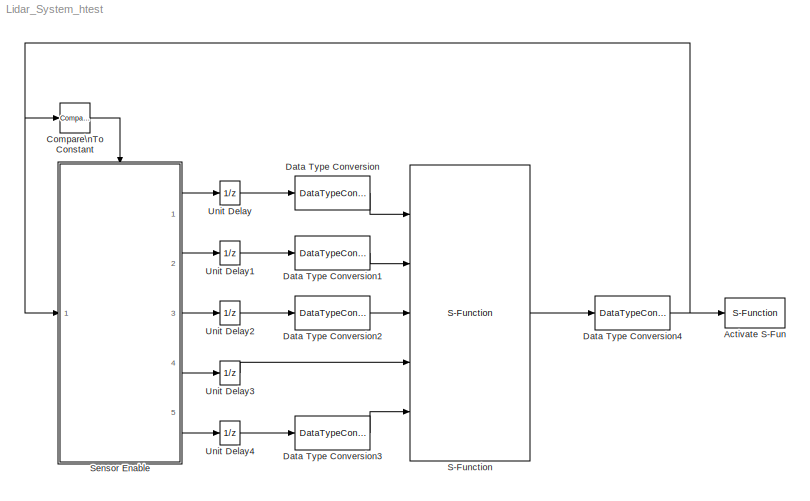
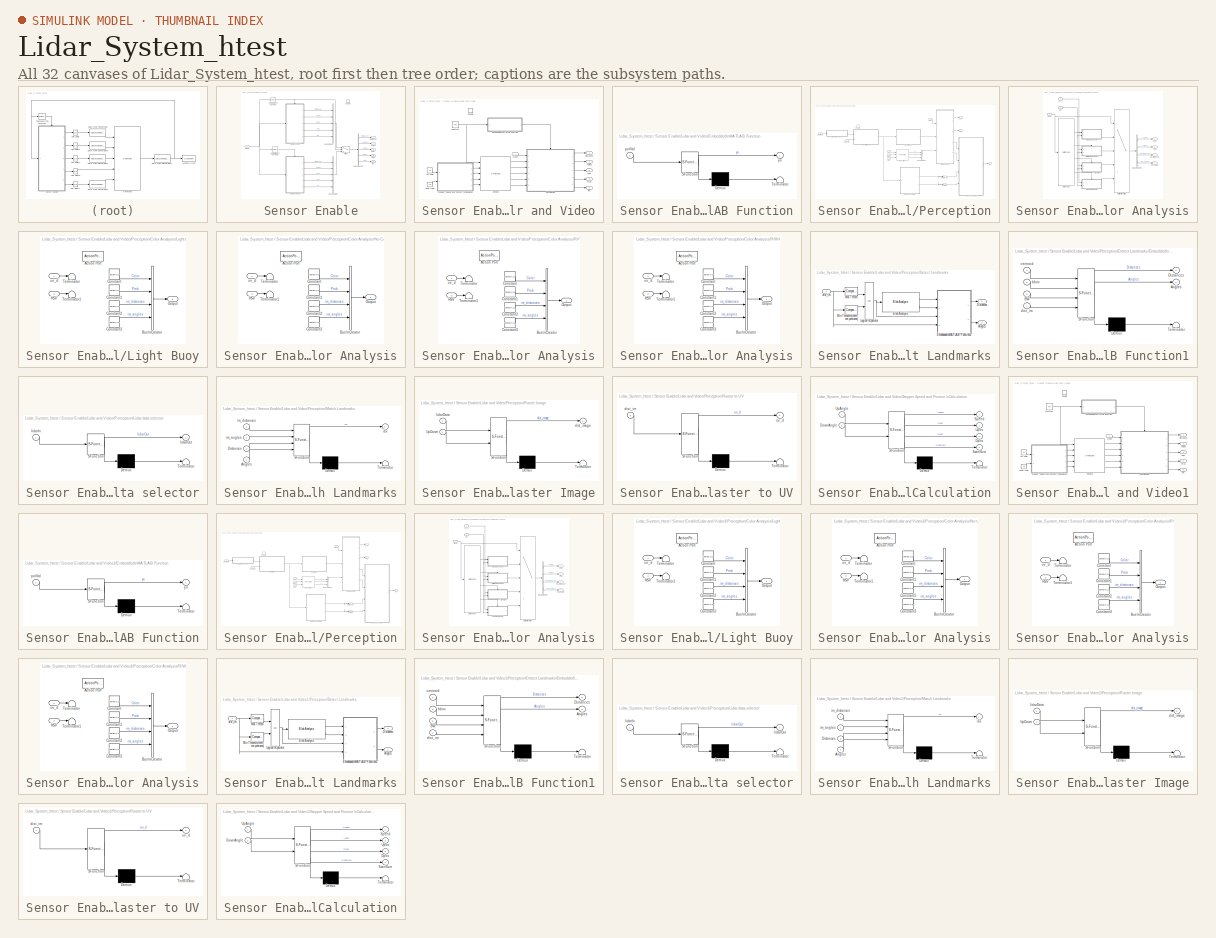
[diagram: thumbnail index - all 32 canvases of the model, root first then tree order]
MODEL Lidar_System_htest
KIND model
BLOCK [S-Function] Activate S-Fun
  EnableBusSupport = off
  FunctionName = printOut
  Ports = [1]
BLOCK [Reference] Compare\nTo Constant  REF=simulink/Logic and Bit\nOperations/Compare\nTo Constant
  FunctionWithSeparateData = off
  LogicOutDataTypeMode = uint8
  Ports = [1, 1]
  RTWMemSecDataConstants = Inherit from model
  RTWMemSecDataInternal = Inherit from model
  RTWMemSecDataParameters = Inherit from model
  RTWMemSecFuncExecute = Inherit from model
  RTWMemSecFuncInitTerm = Inherit from model
  ShowPortLabels = FromPortIcon
  SourceBlock = simulink/Logic and Bit\nOperations/Compare\nTo Constant
  SourceType = Compare To Constant
  SystemSampleTime = -1
  ZeroCross = off
  const = 0
  relop = >
BLOCK [DataTypeConversion] Data Type Conversion
  OutDataType = fixdt(1, 16)
  OutDataTypeMode = int32
  OutDataTypeStr = int32
  OutScaling = 2^0
  RndMeth = Floor
  SaturateOnIntegerOverflow = off
BLOCK [DataTypeConversion] Data Type Conversion1
  OutDataType = fixdt(1, 16)
  OutDataTypeMode = int32
  OutDataTypeStr = int32
  OutScaling = 2^0
  RndMeth = Floor
  SaturateOnIntegerOverflow = off
BLOCK [DataTypeConversion] Data Type Conversion2
  OutDataType = fixdt(1, 16)
  OutDataTypeMode = int32
  OutDataTypeStr = int32
  OutScaling = 2^0
  RndMeth = Floor
  SaturateOnIntegerOverflow = off
BLOCK [DataTypeConversion] Data Type Conversion3
  OutDataType = fixdt(1, 16)
  OutDataTypeMode = int32
  OutDataTypeStr = int32
  OutScaling = 2^0
  RndMeth = Floor
  SaturateOnIntegerOverflow = off
BLOCK [DataTypeConversion] Data Type Conversion4
  OutDataType = fixdt(1, 16)
  OutDataTypeMode = uint32
  OutDataTypeStr = uint32
  OutScaling = 2^0
  RndMeth = Floor
  SaturateOnIntegerOverflow = off
BLOCK [S-Function] S-Function
  EnableBusSupport = off
  FunctionName = serialLandMarksAug9
  Ports = [5, 1]
BLOCK [SubSystem] Sensor Enable
  FunctionWithSeparateData = off
  MaskHideContents = off
  MinAlgLoopOccurrences = off
  Opaque = off
  Ports = [1, 5, 1]
  PropExecContextOutsideSubsystem = off
  RTWSystemCode = Auto
  RequestExecContextInheritance = off
BLOCK [Outport] Sensor Enable/Angles
  IconDisplay = Port number
  OutDataType = fixdt(1, 16)
  OutScaling = 2^0
  Port = 2
BLOCK [BusCreator] Sensor Enable/Bus\nCreator
  DisplayOption = bar
  Inputs = 5
  Ports = [5, 1]
BLOCK [BusCreator] Sensor Enable/Bus\nCreator1
  DisplayOption = bar
  Inputs = 5
  Ports = [5, 1]
BLOCK [BusSelector] Sensor Enable/Bus\nSelector
  OutputSignals = Distances,Angles,Color,Prob,idx
  Ports = [1, 5]
BLOCK [Outport] Sensor Enable/Color
  IconDisplay = Port number
  OutDataType = fixdt(1, 16)
  OutScaling = 2^0
  Port = 3
BLOCK [Reference] Sensor Enable/Compare\nTo Constant  REF=simulink/Logic and Bit\nOperations/Compare\nTo Constant
  FunctionWithSeparateData = off
  LogicOutDataTypeMode = uint8
  Ports = [1, 1]
  RTWMemSecDataConstants = Inherit from model
  RTWMemSecDataInternal = Inherit from model
  RTWMemSecDataParameters = Inherit from model
  RTWMemSecFuncExecute = Inherit from model
  RTWMemSecFuncInitTerm = Inherit from model
  ShowPortLabels = FromPortIcon
  SourceBlock = simulink/Logic and Bit\nOperations/Compare\nTo Constant
  SourceType = Compare To Constant
  SystemSampleTime = -1
  ZeroCross = off
  const = 6
  relop = <
BLOCK [Reference] Sensor Enable/Compare\nTo Constant1  REF=simulink/Logic and Bit\nOperations/Compare\nTo Constant
  FunctionWithSeparateData = off
  LogicOutDataTypeMode = uint8
  Ports = [1, 1]
  RTWMemSecDataConstants = Inherit from model
  RTWMemSecDataInternal = Inherit from model
  RTWMemSecDataParameters = Inherit from model
  RTWMemSecFuncExecute = Inherit from model
  RTWMemSecFuncInitTerm = Inherit from model
  ShowPortLabels = FromPortIcon
  SourceBlock = simulink/Logic and Bit\nOperations/Compare\nTo Constant
  SourceType = Compare To Constant
  SystemSampleTime = -1
  ZeroCross = off
  const = 6
  relop = >=
BLOCK [Outport] Sensor Enable/Distances
  IconDisplay = Port number
  OutDataType = fixdt(1, 16)
  OutScaling = 2^0
BLOCK [EnablePort] Sensor Enable/Enable
  Ports = []
BLOCK [SubSystem] Sensor Enable/Lidar and Video
  FunctionWithSeparateData = off
  MaskHideContents = off
  MinAlgLoopOccurrences = off
  Opaque = off
  Ports = [1, 5, 1]
  PropExecContextOutsideSubsystem = off
  RTWSystemCode = Auto
  RequestExecContextInheritance = off
  TreatAsAtomicUnit = on
BLOCK [Outport] Sensor Enable/Lidar and Video/Angles
  IconDisplay = Port number
  OutDataType = fixdt(1, 16)
  OutScaling = 2^0
  Port = 2
BLOCK [Outport] Sensor Enable/Lidar and Video/Color
  IconDisplay = Port number
  OutDataType = fixdt(1, 16)
  OutScaling = 2^0
  Port = 3
BLOCK [Constant] Sensor Enable/Lidar and Video/Constant
  OutDataType = fixdt(1, 16)
  OutDataTypeMode = int32
  OutDataTypeStr = int32
  OutScaling = 2^0
  Value = 445
BLOCK [Outport] Sensor Enable/Lidar and Video/Distances
  IconDisplay = Port number
  OutDataType = fixdt(1, 16)
  OutScaling = 2^0
BLOCK [Constant] Sensor Enable/Lidar and Video/Down Angle
  OutDataType = fixdt(1, 16)
  OutScaling = 2^0
  Value = -35
BLOCK [SubSystem] Sensor Enable/Lidar and Video/Embedded\nMATLAB Function
  FunctionWithSeparateData = off
  MaskDescription = Embedded MATLAB block
  MaskDisplay = disp('check_pot_val');
  MaskHideContents = off
  MaskIconFrame = on
  MaskIconOpaque = off
  MaskIconRotate = none
  MaskIconUnits = autoscale
  MaskPortRotate = default
  MaskSelfModifiable = on
  MaskType = Stateflow
  MinAlgLoopOccurrences = off
  Opaque = off
  PermitHierarchicalResolution = ExplicitOnly
  Ports = [1, 1]
  PropExecContextOutsideSubsystem = off
  RTWSystemCode = Auto
  RequestExecContextInheritance = off
BLOCK [Demux] Sensor Enable/Lidar and Video/Embedded\nMATLAB Function/ Demux 
  Outputs = 1
  Ports = [1, 1]
BLOCK [S-Function] Sensor Enable/Lidar and Video/Embedded\nMATLAB Function/ SFunction 
  EnableBusSupport = on
  FunctionName = sf_sfun
  PortCounts = [1 2]
  Ports = [1, 2]
  Tag = Stateflow S-Function Lidar_System_htest 13
BLOCK [Terminator] Sensor Enable/Lidar and Video/Embedded\nMATLAB Function/ Terminator 
BLOCK [Inport] Sensor Enable/Lidar and Video/Embedded\nMATLAB Function/potVal
  IconDisplay = Port number
  OutDataType = sfix(16)
  OutScaling = 2^0
BLOCK [Outport] Sensor Enable/Lidar and Video/Embedded\nMATLAB Function/yn
  IconDisplay = Port number
  OutDataType = sfix(16)
  OutScaling = 2^0
BLOCK [EnablePort] Sensor Enable/Lidar and Video/Enable
  Ports = []
BLOCK [Inport] Sensor Enable/Lidar and Video/Mode
  IconDisplay = Port number
  OutDataType = fixdt(1, 16)
  OutScaling = 2^0
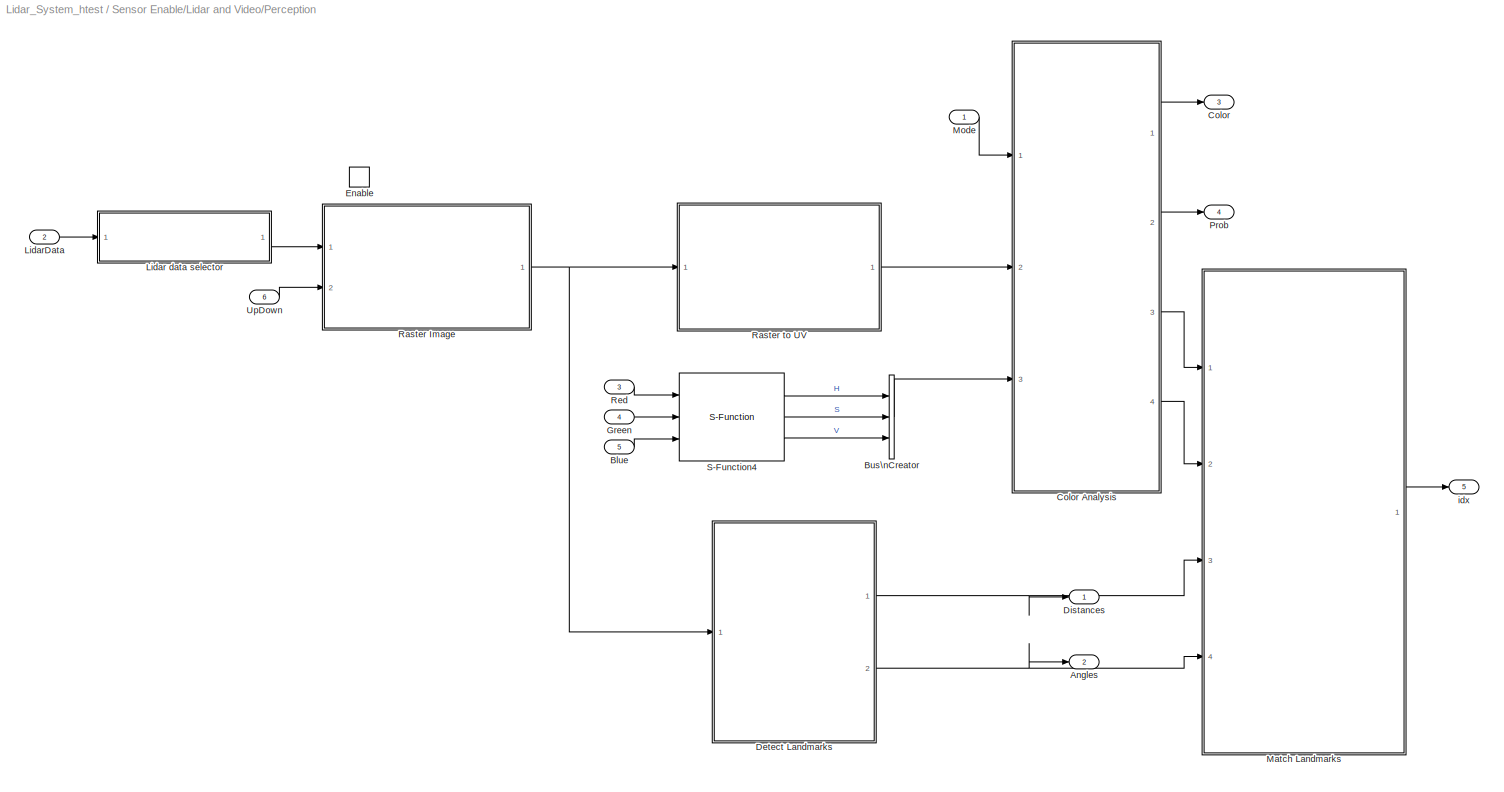
BLOCK [SubSystem] Sensor Enable/Lidar and Video/Perception
  FunctionWithSeparateData = off
  MaskHideContents = off
  MinAlgLoopOccurrences = off
  Opaque = off
  Ports = [6, 5, 1]
  PropExecContextOutsideSubsystem = off
  RTWSystemCode = Auto
  RequestExecContextInheritance = off
  TreatAsAtomicUnit = on
BLOCK [Outport] Sensor Enable/Lidar and Video/Perception/Angles
  IconDisplay = Port number
  OutDataType = fixdt(1, 16)
  OutScaling = 2^0
  Port = 2
BLOCK [Inport] Sensor Enable/Lidar and Video/Perception/Blue
  IconDisplay = Port number
  OutDataType = fixdt(1, 16)
  OutScaling = 2^0
  Port = 5
BLOCK [BusCreator] Sensor Enable/Lidar and Video/Perception/Bus\nCreator
  DisplayOption = bar
  Inputs = 3
  Ports = [3, 1]
BLOCK [Outport] Sensor Enable/Lidar and Video/Perception/Color
  IconDisplay = Port number
  OutDataType = fixdt(1, 16)
  OutScaling = 2^0
  Port = 3
BLOCK [SubSystem] Sensor Enable/Lidar and Video/Perception/Color Analysis
  FunctionWithSeparateData = off
  MaskHideContents = off
  MinAlgLoopOccurrences = off
  Opaque = off
  Ports = [3, 4]
  PropExecContextOutsideSubsystem = off
  RTWSystemCode = Auto
  RequestExecContextInheritance = off
BLOCK [BusSelector] Sensor Enable/Lidar and Video/Perception/Color Analysis/Bus\nSelector
  OutputSignals = Color,Prob,im_distances,im_angles
  Ports = [1, 4]
BLOCK [Outport] Sensor Enable/Lidar and Video/Perception/Color Analysis/Color
  IconDisplay = Port number
  OutDataType = fixdt(1, 16)
  OutScaling = 2^0
BLOCK [Inport] Sensor Enable/Lidar and Video/Perception/Color Analysis/HSV
  IconDisplay = Port number
  OutDataType = fixdt(1, 16)
  OutScaling = 2^0
  Port = 3
BLOCK [SubSystem] Sensor Enable/Lidar and Video/Perception/Color Analysis/Light Buoy
  FunctionWithSeparateData = off
  MaskHideContents = off
  MinAlgLoopOccurrences = off
  Opaque = off
  Ports = [2, 1, 0, 0, 0, 0, 0, 1]
  PropExecContextOutsideSubsystem = off
  RTWSystemCode = Auto
  RequestExecContextInheritance = off
  TreatAsAtomicUnit = on
BLOCK [ActionPort] Sensor Enable/Lidar and Video/Perception/Color Analysis/Light Buoy/Action Port
  ActionType = case
BLOCK [BusCreator] Sensor Enable/Lidar and Video/Perception/Color Analysis/Light Buoy/Bus\nCreator
  DisplayOption = bar
  Ports = [4, 1]
BLOCK [Constant] Sensor Enable/Lidar and Video/Perception/Color Analysis/Light Buoy/Constant
  OutDataType = fixdt(1, 16)
  OutScaling = 2^0
  Value = zeros(4,1)
BLOCK [Constant] Sensor Enable/Lidar and Video/Perception/Color Analysis/Light Buoy/Constant1
  OutDataType = fixdt(1, 16)
  OutScaling = 2^0
  Value = zeros(4,1)
BLOCK [Constant] Sensor Enable/Lidar and Video/Perception/Color Analysis/Light Buoy/Constant2
  OutDataType = fixdt(1, 16)
  OutScaling = 2^0
  Value = zeros(4,1)
BLOCK [Constant] Sensor Enable/Lidar and Video/Perception/Color Analysis/Light Buoy/Constant3
  OutDataType = fixdt(1, 16)
  OutScaling = 2^0
  Value = zeros(4,1)
BLOCK [Inport] Sensor Enable/Lidar and Video/Perception/Color Analysis/Light Buoy/HSV
  IconDisplay = Port number
  OutDataType = fixdt(1, 16)
  OutScaling = 2^0
  Port = 2
BLOCK [Outport] Sensor Enable/Lidar and Video/Perception/Color Analysis/Light Buoy/Output
  IconDisplay = Port number
  OutDataType = fixdt(1, 16)
  OutScaling = 2^0
BLOCK [Terminator] Sensor Enable/Lidar and Video/Perception/Color Analysis/Light Buoy/Terminator
BLOCK [Terminator] Sensor Enable/Lidar and Video/Perception/Color Analysis/Light Buoy/Terminator1
BLOCK [Inport] Sensor Enable/Lidar and Video/Perception/Color Analysis/Light Buoy/uv_d
  IconDisplay = Port number
  OutDataType = fixdt(1, 16)
  OutScaling = 2^0
BLOCK [Inport] Sensor Enable/Lidar and Video/Perception/Color Analysis/Mode
  IconDisplay = Port number
  OutDataType = fixdt(1, 16)
  OutScaling = 2^0
BLOCK [MultiPortSwitch] Sensor Enable/Lidar and Video/Perception/Color Analysis/Multiport\nSwitch
  InputSameDT = off
  Inputs = 4
  OutDataType = fixdt(1, 16)
  OutScaling = 2^0
  Ports = [5, 1]
  SaturateOnIntegerOverflow = off
BLOCK [SubSystem] Sensor Enable/Lidar and Video/Perception/Color Analysis/No Color Analysis
  FunctionWithSeparateData = off
  MaskHideContents = off
  MinAlgLoopOccurrences = off
  Opaque = off
  Ports = [2, 1, 0, 0, 0, 0, 0, 1]
  PropExecContextOutsideSubsystem = off
  RTWSystemCode = Auto
  RequestExecContextInheritance = off
  TreatAsAtomicUnit = on
BLOCK [ActionPort] Sensor Enable/Lidar and Video/Perception/Color Analysis/No Color Analysis/Action Port
  ActionType = default
BLOCK [BusCreator] Sensor Enable/Lidar and Video/Perception/Color Analysis/No Color Analysis/Bus\nCreator
  DisplayOption = bar
  Ports = [4, 1]
BLOCK [Constant] Sensor Enable/Lidar and Video/Perception/Color Analysis/No Color Analysis/Constant
  OutDataType = fixdt(1, 16)
  OutScaling = 2^0
  Value = zeros(4,1)
BLOCK [Constant] Sensor Enable/Lidar and Video/Perception/Color Analysis/No Color Analysis/Constant1
  OutDataType = fixdt(1, 16)
  OutScaling = 2^0
  Value = zeros(4,1)
BLOCK [Constant] Sensor Enable/Lidar and Video/Perception/Color Analysis/No Color Analysis/Constant2
  OutDataType = fixdt(1, 16)
  OutScaling = 2^0
  Value = zeros(4,1)
BLOCK [Constant] Sensor Enable/Lidar and Video/Perception/Color Analysis/No Color Analysis/Constant3
  OutDataType = fixdt(1, 16)
  OutScaling = 2^0
  Value = zeros(4,1)
BLOCK [Inport] Sensor Enable/Lidar and Video/Perception/Color Analysis/No Color Analysis/HSV
  IconDisplay = Port number
  OutDataType = fixdt(1, 16)
  OutScaling = 2^0
  Port = 2
BLOCK [Outport] Sensor Enable/Lidar and Video/Perception/Color Analysis/No Color Analysis/Output
  IconDisplay = Port number
  OutDataType = fixdt(1, 16)
  OutScaling = 2^0
BLOCK [Terminator] Sensor Enable/Lidar and Video/Perception/Color Analysis/No Color Analysis/Terminator
BLOCK [Terminator] Sensor Enable/Lidar and Video/Perception/Color Analysis/No Color Analysis/Terminator1
BLOCK [Inport] Sensor Enable/Lidar and Video/Perception/Color Analysis/No Color Analysis/uv_d
  IconDisplay = Port number
  OutDataType = fixdt(1, 16)
  OutScaling = 2^0
BLOCK [Outport] Sensor Enable/Lidar and Video/Perception/Color Analysis/Prob
  IconDisplay = Port number
  OutDataType = fixdt(1, 16)
  OutScaling = 2^0
  Port = 2
BLOCK [SubSystem] Sensor Enable/Lidar and Video/Perception/Color Analysis/R//G Color Analysis
  FunctionWithSeparateData = off
  MaskHideContents = off
  MinAlgLoopOccurrences = off
  Opaque = off
  Ports = [2, 1, 0, 0, 0, 0, 0, 1]
  PropExecContextOutsideSubsystem = off
  RTWSystemCode = Auto
  RequestExecContextInheritance = off
  TreatAsAtomicUnit = on
BLOCK [ActionPort] Sensor Enable/Lidar and Video/Perception/Color Analysis/R//G Color Analysis/Action Port
  ActionType = case
BLOCK [BusCreator] Sensor Enable/Lidar and Video/Perception/Color Analysis/R//G Color Analysis/Bus\nCreator
  DisplayOption = bar
  Ports = [4, 1]
BLOCK [Constant] Sensor Enable/Lidar and Video/Perception/Color Analysis/R//G Color Analysis/Constant
  OutDataType = fixdt(1, 16)
  OutScaling = 2^0
  Value = zeros(4,1)
BLOCK [Constant] Sensor Enable/Lidar and Video/Perception/Color Analysis/R//G Color Analysis/Constant1
  OutDataType = fixdt(1, 16)
  OutScaling = 2^0
  Value = zeros(4,1)
BLOCK [Constant] Sensor Enable/Lidar and Video/Perception/Color Analysis/R//G Color Analysis/Constant2
  OutDataType = fixdt(1, 16)
  OutScaling = 2^0
  Value = zeros(4,1)
BLOCK [Constant] Sensor Enable/Lidar and Video/Perception/Color Analysis/R//G Color Analysis/Constant3
  OutDataType = fixdt(1, 16)
  OutScaling = 2^0
  Value = zeros(4,1)
BLOCK [Inport] Sensor Enable/Lidar and Video/Perception/Color Analysis/R//G Color Analysis/HSV
  IconDisplay = Port number
  OutDataType = fixdt(1, 16)
  OutScaling = 2^0
  Port = 2
BLOCK [Outport] Sensor Enable/Lidar and Video/Perception/Color Analysis/R//G Color Analysis/Output
  IconDisplay = Port number
  OutDataType = fixdt(1, 16)
  OutScaling = 2^0
BLOCK [Terminator] Sensor Enable/Lidar and Video/Perception/Color Analysis/R//G Color Analysis/Terminator
BLOCK [Terminator] Sensor Enable/Lidar and Video/Perception/Color Analysis/R//G Color Analysis/Terminator1
BLOCK [Inport] Sensor Enable/Lidar and Video/Perception/Color Analysis/R//G Color Analysis/uv_d
  IconDisplay = Port number
  OutDataType = fixdt(1, 16)
  OutScaling = 2^0
BLOCK [SubSystem] Sensor Enable/Lidar and Video/Perception/Color Analysis/R//W//G Color Analysis
  FunctionWithSeparateData = off
  MaskHideContents = off
  MinAlgLoopOccurrences = off
  Opaque = off
  Ports = [2, 1, 0, 0, 0, 0, 0, 1]
  PropExecContextOutsideSubsystem = off
  RTWSystemCode = Auto
  RequestExecContextInheritance = off
  TreatAsAtomicUnit = on
BLOCK [ActionPort] Sensor Enable/Lidar and Video/Perception/Color Analysis/R//W//G Color Analysis/Action Port
  ActionType = case
BLOCK [BusCreator] Sensor Enable/Lidar and Video/Perception/Color Analysis/R//W//G Color Analysis/Bus\nCreator
  DisplayOption = bar
  Ports = [4, 1]
BLOCK [Constant] Sensor Enable/Lidar and Video/Perception/Color Analysis/R//W//G Color Analysis/Constant
  OutDataType = fixdt(1, 16)
  OutScaling = 2^0
  Value = zeros(4,1)
BLOCK [Constant] Sensor Enable/Lidar and Video/Perception/Color Analysis/R//W//G Color Analysis/Constant1
  OutDataType = fixdt(1, 16)
  OutScaling = 2^0
  Value = zeros(4,1)
BLOCK [Constant] Sensor Enable/Lidar and Video/Perception/Color Analysis/R//W//G Color Analysis/Constant2
  OutDataType = fixdt(1, 16)
  OutScaling = 2^0
  Value = zeros(4,1)
BLOCK [Constant] Sensor Enable/Lidar and Video/Perception/Color Analysis/R//W//G Color Analysis/Constant3
  OutDataType = fixdt(1, 16)
  OutScaling = 2^0
  Value = zeros(4,1)
BLOCK [Inport] Sensor Enable/Lidar and Video/Perception/Color Analysis/R//W//G Color Analysis/HSV
  IconDisplay = Port number
  OutDataType = fixdt(1, 16)
  OutScaling = 2^0
  Port = 2
BLOCK [Outport] Sensor Enable/Lidar and Video/Perception/Color Analysis/R//W//G Color Analysis/Output
  IconDisplay = Port number
  OutDataType = fixdt(1, 16)
  OutScaling = 2^0
BLOCK [Terminator] Sensor Enable/Lidar and Video/Perception/Color Analysis/R//W//G Color Analysis/Terminator
BLOCK [Terminator] Sensor Enable/Lidar and Video/Perception/Color Analysis/R//W//G Color Analysis/Terminator1
BLOCK [Inport] Sensor Enable/Lidar and Video/Perception/Color Analysis/R//W//G Color Analysis/uv_d
  IconDisplay = Port number
  OutDataType = fixdt(1, 16)
  OutScaling = 2^0
BLOCK [SwitchCase] Sensor Enable/Lidar and Video/Perception/Color Analysis/Switch Case
  CaseConditions = {1,2,3}
  Ports = [1, 4]
BLOCK [Outport] Sensor Enable/Lidar and Video/Perception/Color Analysis/im_angles
  IconDisplay = Port number
  OutDataType = fixdt(1, 16)
  OutScaling = 2^0
  Port = 4
BLOCK [Outport] Sensor Enable/Lidar and Video/Perception/Color Analysis/im_distances
  IconDisplay = Port number
  OutDataType = fixdt(1, 16)
  OutScaling = 2^0
  Port = 3
BLOCK [Inport] Sensor Enable/Lidar and Video/Perception/Color Analysis/uv_d
  IconDisplay = Port number
  OutDataType = fixdt(1, 16)
  OutScaling = 2^0
  Port = 2
BLOCK [SubSystem] Sensor Enable/Lidar and Video/Perception/Detect Landmarks
  FunctionWithSeparateData = off
  MaskHideContents = off
  MinAlgLoopOccurrences = off
  Opaque = off
  Ports = [1, 2]
  PropExecContextOutsideSubsystem = off
  RTWSystemCode = Auto
  RequestExecContextInheritance = off
BLOCK [Outport] Sensor Enable/Lidar and Video/Perception/Detect Landmarks/Angles
  IconDisplay = Port number
  OutDataType = fixdt(1, 16)
  OutScaling = 2^0
  Port = 2
BLOCK [Reference] Sensor Enable/Lidar and Video/Perception/Detect Landmarks/Blob Analysis  REF=vipstatistics/Blob Analysis
  DialogController = vipDDGCreate
  DialogControllerArgs = DataTag0
  LockScale = off
  Ports = [1, 2]
  SourceBlock = vipstatistics/Blob Analysis
  SourceType = Blob Analysis
  accumFracLength = 0
  accumMode = Binary point scaling
  accumWordLength = 32
  angle = off
  area = off
  bBox = on
  centroid = on
  conn = 8
  eccentricity = off
  equivDiameterSq = off
  excludeBorderBlob = on
  extent = off
  fillValues = -1
  firstCoeffFracLength = 14
  firstCoeffMode = Binary point scaling
  firstCoeffWordLength = 16
  isCount = off
  isFill = on
  isLabel = off
  isOutVarDim = off
  majorAxis = off
  maxArea = intmax('uint32')
  maxBlobs = 12
  memoryFracLength = 16
  memoryMode = Same as product output
  memoryWordLength = 32
  minArea = 30
  minorAxis = off
  outDT = double
  outputFracLength = 16
  outputMode = Binary point scaling
  outputWordLength = 32
  overflowMode = off
  perimeter = off
  prodOutputFracLength = 16
  prodOutputMode = Binary point scaling
  prodOutputWordLength = 32
  roundingMode = Floor
  secondCoeffFracLength = 16
  secondCoeffMode = Binary point scaling
  secondCoeffWordLength = 32
  useMaxArea = off
  useMinArea = on
  warnIfNumBlobsExceeded = on
BLOCK [Outport] Sensor Enable/Lidar and Video/Perception/Detect Landmarks/Distances
  IconDisplay = Port number
  OutDataType = fixdt(1, 16)
  OutScaling = 2^0
BLOCK [SubSystem] Sensor Enable/Lidar and Video/Perception/Detect Landmarks/Embedded\nMATLAB Function1
  FunctionWithSeparateData = off
  MaskDescription = Embedded MATLAB block
  MaskDisplay = disp('landmarkInfo');
  MaskHideContents = off
  MaskIconFrame = on
  MaskIconOpaque = off
  MaskIconRotate = none
  MaskIconUnits = autoscale
  MaskPortRotate = default
  MaskSelfModifiable = on
  MaskType = Stateflow
  MinAlgLoopOccurrences = off
  Opaque = off
  PermitHierarchicalResolution = ExplicitOnly
  Ports = [4, 2]
  PropExecContextOutsideSubsystem = off
  RTWSystemCode = Auto
  RequestExecContextInheritance = off
BLOCK [Demux] Sensor Enable/Lidar and Video/Perception/Detect Landmarks/Embedded\nMATLAB Function1/ Demux 
  Outputs = 1
  Ports = [1, 1]
BLOCK [S-Function] Sensor Enable/Lidar and Video/Perception/Detect Landmarks/Embedded\nMATLAB Function1/ SFunction 
  EnableBusSupport = on
  FunctionName = sf_sfun
  PortCounts = [4 3]
  Ports = [4, 3]
  Tag = Stateflow S-Function Lidar_System_htest 4
BLOCK [Terminator] Sensor Enable/Lidar and Video/Perception/Detect Landmarks/Embedded\nMATLAB Function1/ Terminator 
BLOCK [Outport] Sensor Enable/Lidar and Video/Perception/Detect Landmarks/Embedded\nMATLAB Function1/Angles
  IconDisplay = Port number
  Port = 2
BLOCK [Inport] Sensor Enable/Lidar and Video/Perception/Detect Landmarks/Embedded\nMATLAB Function1/BW
  IconDisplay = Port number
  Port = 3
BLOCK [Outport] Sensor Enable/Lidar and Video/Perception/Detect Landmarks/Embedded\nMATLAB Function1/Distances
  IconDisplay = Port number
BLOCK [Inport] Sensor Enable/Lidar and Video/Perception/Detect Landmarks/Embedded\nMATLAB Function1/bbox
  IconDisplay = Port number
  OutDataType = sfix(16)
  OutScaling = 2^0
  Port = 2
BLOCK [Inport] Sensor Enable/Lidar and Video/Perception/Detect Landmarks/Embedded\nMATLAB Function1/centroid
  IconDisplay = Port number
BLOCK [Inport] Sensor Enable/Lidar and Video/Perception/Detect Landmarks/Embedded\nMATLAB Function1/dist_im
  IconDisplay = Port number
  Port = 4
BLOCK [Logic] Sensor Enable/Lidar and Video/Perception/Detect Landmarks/Logical\nOperator
  AllPortsSameDT = off
  LogicDataType = fixdt(0, 8)
  OutDataTypeMode = boolean
  OutDataTypeStr = boolean
  Ports = [2, 1]
BLOCK [Reference] Sensor Enable/Lidar and Video/Perception/Detect Landmarks/Max Thresh  REF=simulink/Logic and Bit\nOperations/Compare\nTo Constant
  FunctionWithSeparateData = off
  LogicOutDataTypeMode = boolean
  Ports = [1, 1]
  RTWMemSecDataConstants = Inherit from model
  RTWMemSecDataInternal = Inherit from model
  RTWMemSecDataParameters = Inherit from model
  RTWMemSecFuncExecute = Inherit from model
  RTWMemSecFuncInitTerm = Inherit from model
  ShowPortLabels = FromPortIcon
  SourceBlock = simulink/Logic and Bit\nOperations/Compare\nTo Constant
  SourceType = Compare To Constant
  SystemSampleTime = -1
  ZeroCross = off
  const = 20000
  relop = <=
BLOCK [Reference] Sensor Enable/Lidar and Video/Perception/Detect Landmarks/Min Thresh\n(removes pontoons)  REF=simulink/Logic and Bit\nOperations/Compare\nTo Constant
  FunctionWithSeparateData = off
  LogicOutDataTypeMode = boolean
  Ports = [1, 1]
  RTWMemSecDataConstants = Inherit from model
  RTWMemSecDataInternal = Inherit from model
  RTWMemSecDataParameters = Inherit from model
  RTWMemSecFuncExecute = Inherit from model
  RTWMemSecFuncInitTerm = Inherit from model
  ShowPortLabels = FromPortIcon
  SourceBlock = simulink/Logic and Bit\nOperations/Compare\nTo Constant
  SourceType = Compare To Constant
  SystemSampleTime = -1
  ZeroCross = off
  const = 5000
  relop = >
BLOCK [Inport] Sensor Enable/Lidar and Video/Perception/Detect Landmarks/dist_im
  IconDisplay = Port number
  OutDataType = fixdt(1, 16)
  OutScaling = 2^0
BLOCK [Outport] Sensor Enable/Lidar and Video/Perception/Distances
  IconDisplay = Port number
  OutDataType = fixdt(1, 16)
  OutScaling = 2^0
BLOCK [EnablePort] Sensor Enable/Lidar and Video/Perception/Enable
  Ports = []
BLOCK [Inport] Sensor Enable/Lidar and Video/Perception/Green
  IconDisplay = Port number
  OutDataType = fixdt(1, 16)
  OutScaling = 2^0
  Port = 4
BLOCK [SubSystem] Sensor Enable/Lidar and Video/Perception/Lidar data selector
  FunctionWithSeparateData = off
  MaskDescription = Embedded MATLAB block
  MaskDisplay = disp('data_selector');
  MaskHideContents = off
  MaskIconFrame = on
  MaskIconOpaque = off
  MaskIconRotate = none
  MaskIconUnits = autoscale
  MaskPortRotate = default
  MaskSelfModifiable = on
  MaskType = Stateflow
  MinAlgLoopOccurrences = off
  Opaque = off
  PermitHierarchicalResolution = ExplicitOnly
  Ports = [1, 1]
  PropExecContextOutsideSubsystem = off
  RTWSystemCode = Auto
  RequestExecContextInheritance = off
BLOCK [Demux] Sensor Enable/Lidar and Video/Perception/Lidar data selector/ Demux 
  Outputs = 1
  Ports = [1, 1]
BLOCK [S-Function] Sensor Enable/Lidar and Video/Perception/Lidar data selector/ SFunction 
  EnableBusSupport = on
  FunctionName = sf_sfun
  PortCounts = [1 2]
  Ports = [1, 2]
  Tag = Stateflow S-Function Lidar_System_htest 11
BLOCK [Terminator] Sensor Enable/Lidar and Video/Perception/Lidar data selector/ Terminator 
BLOCK [Inport] Sensor Enable/Lidar and Video/Perception/Lidar data selector/lidarIn
  IconDisplay = Port number
  OutDataType = sfix(16)
  OutScaling = 2^0
BLOCK [Outport] Sensor Enable/Lidar and Video/Perception/Lidar data selector/lidarOut
  IconDisplay = Port number
  OutDataType = sfix(16)
  OutScaling = 2^0
BLOCK [Inport] Sensor Enable/Lidar and Video/Perception/LidarData
  IconDisplay = Port number
  OutDataType = fixdt(1, 16)
  OutScaling = 2^0
  Port = 2
BLOCK [SubSystem] Sensor Enable/Lidar and Video/Perception/Match Landmarks
  FunctionWithSeparateData = off
  MaskDescription = Embedded MATLAB block
  MaskDisplay = disp('MatchLandmarks');
  MaskHideContents = off
  MaskIconFrame = on
  MaskIconOpaque = off
  MaskIconRotate = none
  MaskIconUnits = autoscale
  MaskPortRotate = default
  MaskSelfModifiable = on
  MaskType = Stateflow
  MinAlgLoopOccurrences = off
  Opaque = off
  PermitHierarchicalResolution = ExplicitOnly
  Ports = [4, 1]
  PropExecContextOutsideSubsystem = off
  RTWSystemCode = Auto
  RequestExecContextInheritance = off
BLOCK [Demux] Sensor Enable/Lidar and Video/Perception/Match Landmarks/ Demux 
  Outputs = 1
  Ports = [1, 1]
BLOCK [S-Function] Sensor Enable/Lidar and Video/Perception/Match Landmarks/ SFunction 
  EnableBusSupport = on
  FunctionName = sf_sfun
  PortCounts = [4 2]
  Ports = [4, 2]
  Tag = Stateflow S-Function Lidar_System_htest 2
BLOCK [Terminator] Sensor Enable/Lidar and Video/Perception/Match Landmarks/ Terminator 
BLOCK [Inport] Sensor Enable/Lidar and Video/Perception/Match Landmarks/Angles
  IconDisplay = Port number
  Port = 4
BLOCK [Inport] Sensor Enable/Lidar and Video/Perception/Match Landmarks/Distances
  IconDisplay = Port number
  Port = 3
BLOCK [Outport] Sensor Enable/Lidar and Video/Perception/Match Landmarks/idx
  IconDisplay = Port number
  OutDataType = sfix(16)
  OutScaling = 2^0
BLOCK [Inport] Sensor Enable/Lidar and Video/Perception/Match Landmarks/im_angles
  IconDisplay = Port number
  Port = 2
BLOCK [Inport] Sensor Enable/Lidar and Video/Perception/Match Landmarks/im_distances
  IconDisplay = Port number
  OutDataType = sfix(16)
  OutScaling = 2^0
BLOCK [Inport] Sensor Enable/Lidar and Video/Perception/Mode
  IconDisplay = Port number
  OutDataType = fixdt(1, 16)
  OutScaling = 2^0
BLOCK [Outport] Sensor Enable/Lidar and Video/Perception/Prob
  IconDisplay = Port number
  OutDataType = fixdt(1, 16)
  OutScaling = 2^0
  Port = 4
BLOCK [SubSystem] Sensor Enable/Lidar and Video/Perception/Raster Image
  FunctionWithSeparateData = off
  MaskDescription = Embedded MATLAB block
  MaskDisplay = disp('scanImages');
  MaskHideContents = off
  MaskIconFrame = on
  MaskIconOpaque = off
  MaskIconRotate = none
  MaskIconUnits = autoscale
  MaskPortRotate = default
  MaskSelfModifiable = on
  MaskType = Stateflow
  MinAlgLoopOccurrences = off
  Opaque = off
  PermitHierarchicalResolution = ExplicitOnly
  Ports = [2, 1]
  PropExecContextOutsideSubsystem = off
  RTWSystemCode = Auto
  RequestExecContextInheritance = off
BLOCK [Demux] Sensor Enable/Lidar and Video/Perception/Raster Image/ Demux 
  Outputs = 1
  Ports = [1, 1]
BLOCK [S-Function] Sensor Enable/Lidar and Video/Perception/Raster Image/ SFunction 
  EnableBusSupport = on
  FunctionName = sf_sfun
  PortCounts = [2 2]
  Ports = [2, 2]
  Tag = Stateflow S-Function Lidar_System_htest 10
BLOCK [Terminator] Sensor Enable/Lidar and Video/Perception/Raster Image/ Terminator 
BLOCK [Inport] Sensor Enable/Lidar and Video/Perception/Raster Image/UpDown
  IconDisplay = Port number
  Port = 2
BLOCK [Outport] Sensor Enable/Lidar and Video/Perception/Raster Image/dist_image
  IconDisplay = Port number
  OutDataType = sfix(16)
  OutScaling = 2^0
BLOCK [Inport] Sensor Enable/Lidar and Video/Perception/Raster Image/lidarData
  IconDisplay = Port number
  OutDataType = sfix(16)
  OutScaling = 2^0
BLOCK [SubSystem] Sensor Enable/Lidar and Video/Perception/Raster to UV
  FunctionWithSeparateData = off
  MaskDescription = Embedded MATLAB block
  MaskDisplay = disp('AngleMatch');
  MaskHideContents = off
  MaskIconFrame = on
  MaskIconOpaque = off
  MaskIconRotate = none
  MaskIconUnits = autoscale
  MaskPortRotate = default
  MaskSelfModifiable = on
  MaskType = Stateflow
  MinAlgLoopOccurrences = off
  Opaque = off
  PermitHierarchicalResolution = ExplicitOnly
  Ports = [1, 1]
  PropExecContextOutsideSubsystem = off
  RTWSystemCode = Auto
  RequestExecContextInheritance = off
BLOCK [Demux] Sensor Enable/Lidar and Video/Perception/Raster to UV/ Demux 
  Outputs = 1
  Ports = [1, 1]
BLOCK [S-Function] Sensor Enable/Lidar and Video/Perception/Raster to UV/ SFunction 
  EnableBusSupport = on
  FunctionName = sf_sfun
  PortCounts = [1 2]
  Ports = [1, 2]
  Tag = Stateflow S-Function Lidar_System_htest 5
BLOCK [Terminator] Sensor Enable/Lidar and Video/Perception/Raster to UV/ Terminator 
BLOCK [Inport] Sensor Enable/Lidar and Video/Perception/Raster to UV/dist_im
  IconDisplay = Port number
BLOCK [Outport] Sensor Enable/Lidar and Video/Perception/Raster to UV/uv_d
  IconDisplay = Port number
  OutDataType = sfix(16)
  OutScaling = 2^0
BLOCK [Inport] Sensor Enable/Lidar and Video/Perception/Red
  IconDisplay = Port number
  OutDataType = fixdt(1, 16)
  OutScaling = 2^0
  Port = 3
BLOCK [S-Function] Sensor Enable/Lidar and Video/Perception/S-Function4
  EnableBusSupport = off
  FunctionName = rgbtohsv_sfunV2
  Ports = [3, 3]
BLOCK [Inport] Sensor Enable/Lidar and Video/Perception/UpDown
  IconDisplay = Port number
  OutDataType = fixdt(1, 16)
  OutScaling = 2^0
  Port = 6
BLOCK [Outport] Sensor Enable/Lidar and Video/Perception/idx
  IconDisplay = Port number
  OutDataType = fixdt(1, 16)
  OutScaling = 2^0
  Port = 5
BLOCK [Outport] Sensor Enable/Lidar and Video/Prob
  IconDisplay = Port number
  OutDataType = fixdt(1, 16)
  OutScaling = 2^0
  Port = 4
BLOCK [S-Function] Sensor Enable/Lidar and Video/Sensing
  EnableBusSupport = off
  FunctionName = lidarCam_sfunct_Aug14
  Ports = [5, 5]
BLOCK [SubSystem] Sensor Enable/Lidar and Video/Stepper Speed and Postion \nCalculation
  FunctionWithSeparateData = off
  MaskDescription = Embedded MATLAB block
  MaskDisplay = disp('stepper_calc');
  MaskHideContents = off
  MaskIconFrame = on
  MaskIconOpaque = off
  MaskIconRotate = none
  MaskIconUnits = autoscale
  MaskPortRotate = default
  MaskSelfModifiable = on
  MaskType = Stateflow
  MinAlgLoopOccurrences = off
  Opaque = off
  PermitHierarchicalResolution = ExplicitOnly
  Ports = [2, 4]
  PropExecContextOutsideSubsystem = off
  RTWSystemCode = Auto
  RequestExecContextInheritance = off
BLOCK [Demux] Sensor Enable/Lidar and Video/Stepper Speed and Postion \nCalculation/ Demux 
  Outputs = 1
  Ports = [1, 1]
BLOCK [S-Function] Sensor Enable/Lidar and Video/Stepper Speed and Postion \nCalculation/ SFunction 
  EnableBusSupport = on
  FunctionName = sf_sfun
  PortCounts = [2 5]
  Ports = [2, 5]
  Tag = Stateflow S-Function Lidar_System_htest 14
BLOCK [Terminator] Sensor Enable/Lidar and Video/Stepper Speed and Postion \nCalculation/ Terminator 
BLOCK [Inport] Sensor Enable/Lidar and Video/Stepper Speed and Postion \nCalculation/DownAngle
  IconDisplay = Port number
  Port = 2
BLOCK [Outport] Sensor Enable/Lidar and Video/Stepper Speed and Postion \nCalculation/Dpos
  IconDisplay = Port number
  Port = 3
BLOCK [Outport] Sensor Enable/Lidar and Video/Stepper Speed and Postion \nCalculation/ScanNum
  IconDisplay = Port number
  Port = 4
BLOCK [Outport] Sensor Enable/Lidar and Video/Stepper Speed and Postion \nCalculation/Speed
  IconDisplay = Port number
  OutDataType = sfix(16)
  OutScaling = 2^0
BLOCK [Inport] Sensor Enable/Lidar and Video/Stepper Speed and Postion \nCalculation/UpAngle
  IconDisplay = Port number
  OutDataType = sfix(16)
  OutScaling = 2^0
BLOCK [Outport] Sensor Enable/Lidar and Video/Stepper Speed and Postion \nCalculation/Upos
  IconDisplay = Port number
  Port = 2
BLOCK [Constant] Sensor Enable/Lidar and Video/Up Angle
  OutDataType = fixdt(1, 16)
  OutScaling = 2^0
  Value = 10
BLOCK [Outport] Sensor Enable/Lidar and Video/idx
  IconDisplay = Port number
  OutDataType = fixdt(1, 16)
  OutScaling = 2^0
  Port = 5
BLOCK [SubSystem] Sensor Enable/Lidar and Video1
  FunctionWithSeparateData = off
  MaskHideContents = off
  MinAlgLoopOccurrences = off
  Opaque = off
  Ports = [1, 5, 1]
  PropExecContextOutsideSubsystem = off
  RTWSystemCode = Auto
  RequestExecContextInheritance = off
  TreatAsAtomicUnit = on
BLOCK [Outport] Sensor Enable/Lidar and Video1/Angles
  IconDisplay = Port number
  OutDataType = fixdt(1, 16)
  OutScaling = 2^0
  Port = 2
BLOCK [Outport] Sensor Enable/Lidar and Video1/Color
  IconDisplay = Port number
  OutDataType = fixdt(1, 16)
  OutScaling = 2^0
  Port = 3
BLOCK [Constant] Sensor Enable/Lidar and Video1/Constant
  OutDataType = fixdt(1, 16)
  OutDataTypeMode = int32
  OutDataTypeStr = int32
  OutScaling = 2^0
  Value = 445
BLOCK [Outport] Sensor Enable/Lidar and Video1/Distances
  IconDisplay = Port number
  OutDataType = fixdt(1, 16)
  OutScaling = 2^0
BLOCK [Constant] Sensor Enable/Lidar and Video1/Down Angle
  OutDataType = fixdt(1, 16)
  OutScaling = 2^0
  Value = -35
BLOCK [SubSystem] Sensor Enable/Lidar and Video1/Embedded\nMATLAB Function
  FunctionWithSeparateData = off
  MaskDescription = Embedded MATLAB block
  MaskDisplay = disp('check_pot_val');
  MaskHideContents = off
  MaskIconFrame = on
  MaskIconOpaque = off
  MaskIconRotate = none
  MaskIconUnits = autoscale
  MaskPortRotate = default
  MaskSelfModifiable = on
  MaskType = Stateflow
  MinAlgLoopOccurrences = off
  Opaque = off
  PermitHierarchicalResolution = ExplicitOnly
  Ports = [1, 1]
  PropExecContextOutsideSubsystem = off
  RTWSystemCode = Auto
  RequestExecContextInheritance = off
BLOCK [Demux] Sensor Enable/Lidar and Video1/Embedded\nMATLAB Function/ Demux 
  Outputs = 1
  Ports = [1, 1]
BLOCK [S-Function] Sensor Enable/Lidar and Video1/Embedded\nMATLAB Function/ SFunction 
  EnableBusSupport = on
  FunctionName = sf_sfun
  PortCounts = [1 2]
  Ports = [1, 2]
  Tag = Stateflow S-Function Lidar_System_htest 3
BLOCK [Terminator] Sensor Enable/Lidar and Video1/Embedded\nMATLAB Function/ Terminator 
BLOCK [Inport] Sensor Enable/Lidar and Video1/Embedded\nMATLAB Function/potVal
  IconDisplay = Port number
  OutDataType = sfix(16)
  OutScaling = 2^0
BLOCK [Outport] Sensor Enable/Lidar and Video1/Embedded\nMATLAB Function/yn
  IconDisplay = Port number
  OutDataType = sfix(16)
  OutScaling = 2^0
BLOCK [EnablePort] Sensor Enable/Lidar and Video1/Enable
  Ports = []
BLOCK [Inport] Sensor Enable/Lidar and Video1/Mode
  IconDisplay = Port number
  OutDataType = fixdt(1, 16)
  OutScaling = 2^0
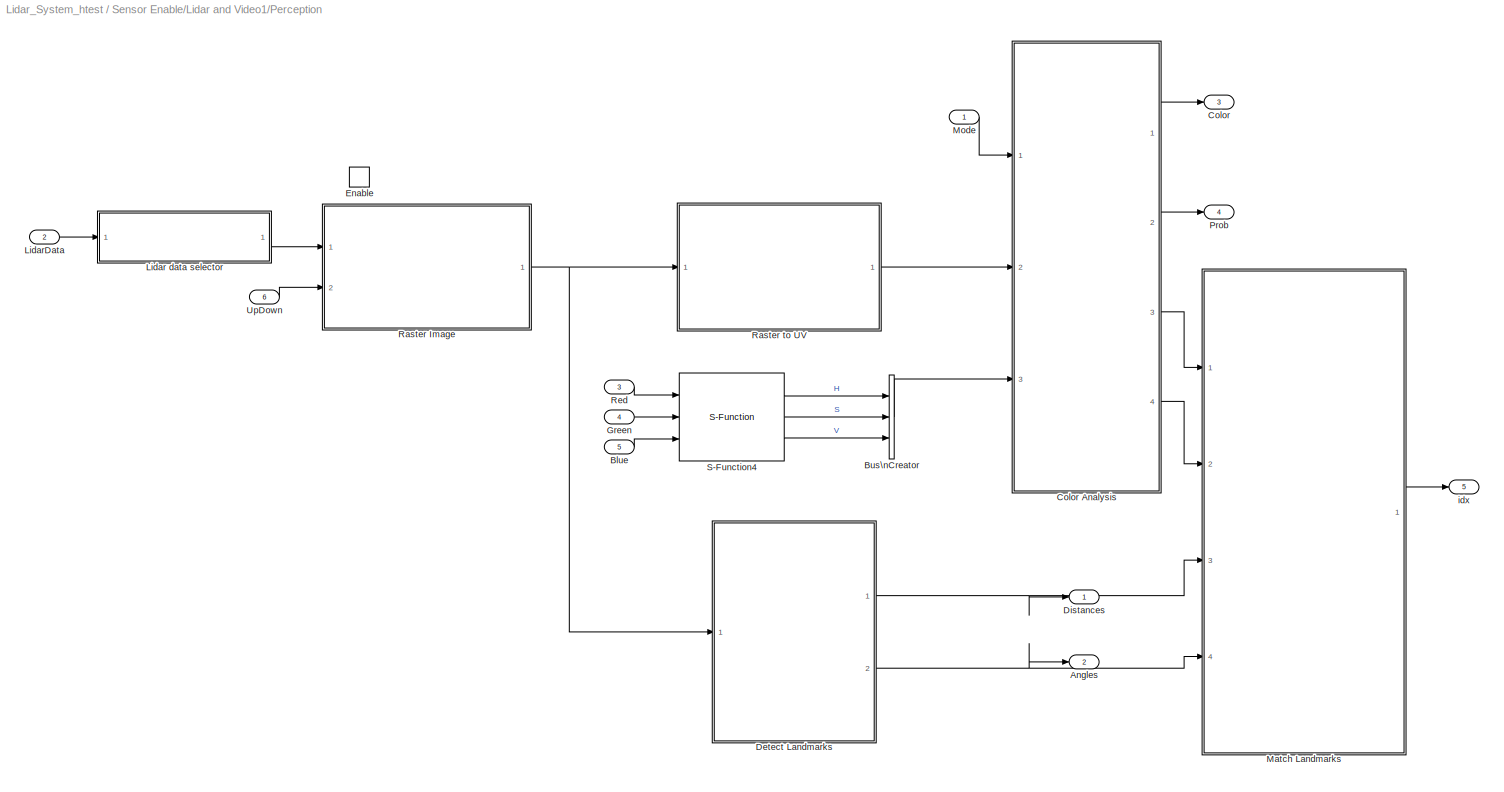
BLOCK [SubSystem] Sensor Enable/Lidar and Video1/Perception
  FunctionWithSeparateData = off
  MaskHideContents = off
  MinAlgLoopOccurrences = off
  Opaque = off
  Ports = [6, 5, 1]
  PropExecContextOutsideSubsystem = off
  RTWSystemCode = Auto
  RequestExecContextInheritance = off
  TreatAsAtomicUnit = on
BLOCK [Outport] Sensor Enable/Lidar and Video1/Perception/Angles
  IconDisplay = Port number
  OutDataType = fixdt(1, 16)
  OutScaling = 2^0
  Port = 2
BLOCK [Inport] Sensor Enable/Lidar and Video1/Perception/Blue
  IconDisplay = Port number
  OutDataType = fixdt(1, 16)
  OutScaling = 2^0
  Port = 5
BLOCK [BusCreator] Sensor Enable/Lidar and Video1/Perception/Bus\nCreator
  DisplayOption = bar
  Inputs = 3
  Ports = [3, 1]
BLOCK [Outport] Sensor Enable/Lidar and Video1/Perception/Color
  IconDisplay = Port number
  OutDataType = fixdt(1, 16)
  OutScaling = 2^0
  Port = 3
BLOCK [SubSystem] Sensor Enable/Lidar and Video1/Perception/Color Analysis
  FunctionWithSeparateData = off
  MaskHideContents = off
  MinAlgLoopOccurrences = off
  Opaque = off
  Ports = [3, 4]
  PropExecContextOutsideSubsystem = off
  RTWSystemCode = Auto
  RequestExecContextInheritance = off
BLOCK [BusSelector] Sensor Enable/Lidar and Video1/Perception/Color Analysis/Bus\nSelector
  OutputSignals = Color,Prob,im_distances,im_angles
  Ports = [1, 4]
BLOCK [Outport] Sensor Enable/Lidar and Video1/Perception/Color Analysis/Color
  IconDisplay = Port number
  OutDataType = fixdt(1, 16)
  OutScaling = 2^0
BLOCK [Inport] Sensor Enable/Lidar and Video1/Perception/Color Analysis/HSV
  IconDisplay = Port number
  OutDataType = fixdt(1, 16)
  OutScaling = 2^0
  Port = 3
BLOCK [SubSystem] Sensor Enable/Lidar and Video1/Perception/Color Analysis/Light Buoy
  FunctionWithSeparateData = off
  MaskHideContents = off
  MinAlgLoopOccurrences = off
  Opaque = off
  Ports = [2, 1, 0, 0, 0, 0, 0, 1]
  PropExecContextOutsideSubsystem = off
  RTWSystemCode = Auto
  RequestExecContextInheritance = off
  TreatAsAtomicUnit = on
BLOCK [ActionPort] Sensor Enable/Lidar and Video1/Perception/Color Analysis/Light Buoy/Action Port
BLOCK [BusCreator] Sensor Enable/Lidar and Video1/Perception/Color Analysis/Light Buoy/Bus\nCreator
  DisplayOption = bar
  Ports = [4, 1]
BLOCK [Constant] Sensor Enable/Lidar and Video1/Perception/Color Analysis/Light Buoy/Constant
  OutDataType = fixdt(1, 16)
  OutScaling = 2^0
  Value = zeros(4,1)
BLOCK [Constant] Sensor Enable/Lidar and Video1/Perception/Color Analysis/Light Buoy/Constant1
  OutDataType = fixdt(1, 16)
  OutScaling = 2^0
  Value = zeros(4,1)
BLOCK [Constant] Sensor Enable/Lidar and Video1/Perception/Color Analysis/Light Buoy/Constant2
  OutDataType = fixdt(1, 16)
  OutScaling = 2^0
  Value = zeros(4,1)
BLOCK [Constant] Sensor Enable/Lidar and Video1/Perception/Color Analysis/Light Buoy/Constant3
  OutDataType = fixdt(1, 16)
  OutScaling = 2^0
  Value = zeros(4,1)
BLOCK [Inport] Sensor Enable/Lidar and Video1/Perception/Color Analysis/Light Buoy/HSV
  IconDisplay = Port number
  OutDataType = fixdt(1, 16)
  OutScaling = 2^0
  Port = 2
BLOCK [Outport] Sensor Enable/Lidar and Video1/Perception/Color Analysis/Light Buoy/Output
  IconDisplay = Port number
  OutDataType = fixdt(1, 16)
  OutScaling = 2^0
BLOCK [Terminator] Sensor Enable/Lidar and Video1/Perception/Color Analysis/Light Buoy/Terminator
BLOCK [Terminator] Sensor Enable/Lidar and Video1/Perception/Color Analysis/Light Buoy/Terminator1
BLOCK [Inport] Sensor Enable/Lidar and Video1/Perception/Color Analysis/Light Buoy/uv_d
  IconDisplay = Port number
  OutDataType = fixdt(1, 16)
  OutScaling = 2^0
BLOCK [Inport] Sensor Enable/Lidar and Video1/Perception/Color Analysis/Mode
  IconDisplay = Port number
  OutDataType = fixdt(1, 16)
  OutScaling = 2^0
BLOCK [MultiPortSwitch] Sensor Enable/Lidar and Video1/Perception/Color Analysis/Multiport\nSwitch
  InputSameDT = off
  Inputs = 4
  OutDataType = fixdt(1, 16)
  OutScaling = 2^0
  Ports = [5, 1]
  SaturateOnIntegerOverflow = off
BLOCK [SubSystem] Sensor Enable/Lidar and Video1/Perception/Color Analysis/No Color Analysis
  FunctionWithSeparateData = off
  MaskHideContents = off
  MinAlgLoopOccurrences = off
  Opaque = off
  Ports = [2, 1, 0, 0, 0, 0, 0, 1]
  PropExecContextOutsideSubsystem = off
  RTWSystemCode = Auto
  RequestExecContextInheritance = off
  TreatAsAtomicUnit = on
BLOCK [ActionPort] Sensor Enable/Lidar and Video1/Perception/Color Analysis/No Color Analysis/Action Port
BLOCK [BusCreator] Sensor Enable/Lidar and Video1/Perception/Color Analysis/No Color Analysis/Bus\nCreator
  DisplayOption = bar
  Ports = [4, 1]
BLOCK [Constant] Sensor Enable/Lidar and Video1/Perception/Color Analysis/No Color Analysis/Constant
  OutDataType = fixdt(1, 16)
  OutScaling = 2^0
  Value = zeros(4,1)
BLOCK [Constant] Sensor Enable/Lidar and Video1/Perception/Color Analysis/No Color Analysis/Constant1
  OutDataType = fixdt(1, 16)
  OutScaling = 2^0
  Value = zeros(4,1)
BLOCK [Constant] Sensor Enable/Lidar and Video1/Perception/Color Analysis/No Color Analysis/Constant2
  OutDataType = fixdt(1, 16)
  OutScaling = 2^0
  Value = zeros(4,1)
BLOCK [Constant] Sensor Enable/Lidar and Video1/Perception/Color Analysis/No Color Analysis/Constant3
  OutDataType = fixdt(1, 16)
  OutScaling = 2^0
  Value = zeros(4,1)
BLOCK [Inport] Sensor Enable/Lidar and Video1/Perception/Color Analysis/No Color Analysis/HSV
  IconDisplay = Port number
  OutDataType = fixdt(1, 16)
  OutScaling = 2^0
  Port = 2
BLOCK [Outport] Sensor Enable/Lidar and Video1/Perception/Color Analysis/No Color Analysis/Output
  IconDisplay = Port number
  OutDataType = fixdt(1, 16)
  OutScaling = 2^0
BLOCK [Terminator] Sensor Enable/Lidar and Video1/Perception/Color Analysis/No Color Analysis/Terminator
BLOCK [Terminator] Sensor Enable/Lidar and Video1/Perception/Color Analysis/No Color Analysis/Terminator1
BLOCK [Inport] Sensor Enable/Lidar and Video1/Perception/Color Analysis/No Color Analysis/uv_d
  IconDisplay = Port number
  OutDataType = fixdt(1, 16)
  OutScaling = 2^0
BLOCK [Outport] Sensor Enable/Lidar and Video1/Perception/Color Analysis/Prob
  IconDisplay = Port number
  OutDataType = fixdt(1, 16)
  OutScaling = 2^0
  Port = 2
BLOCK [SubSystem] Sensor Enable/Lidar and Video1/Perception/Color Analysis/R//G Color Analysis
  FunctionWithSeparateData = off
  MaskHideContents = off
  MinAlgLoopOccurrences = off
  Opaque = off
  Ports = [2, 1, 0, 0, 0, 0, 0, 1]
  PropExecContextOutsideSubsystem = off
  RTWSystemCode = Auto
  RequestExecContextInheritance = off
  TreatAsAtomicUnit = on
BLOCK [ActionPort] Sensor Enable/Lidar and Video1/Perception/Color Analysis/R//G Color Analysis/Action Port
BLOCK [BusCreator] Sensor Enable/Lidar and Video1/Perception/Color Analysis/R//G Color Analysis/Bus\nCreator
  DisplayOption = bar
  Ports = [4, 1]
BLOCK [Constant] Sensor Enable/Lidar and Video1/Perception/Color Analysis/R//G Color Analysis/Constant
  OutDataType = fixdt(1, 16)
  OutScaling = 2^0
  Value = zeros(4,1)
BLOCK [Constant] Sensor Enable/Lidar and Video1/Perception/Color Analysis/R//G Color Analysis/Constant1
  OutDataType = fixdt(1, 16)
  OutScaling = 2^0
  Value = zeros(4,1)
BLOCK [Constant] Sensor Enable/Lidar and Video1/Perception/Color Analysis/R//G Color Analysis/Constant2
  OutDataType = fixdt(1, 16)
  OutScaling = 2^0
  Value = zeros(4,1)
BLOCK [Constant] Sensor Enable/Lidar and Video1/Perception/Color Analysis/R//G Color Analysis/Constant3
  OutDataType = fixdt(1, 16)
  OutScaling = 2^0
  Value = zeros(4,1)
BLOCK [Inport] Sensor Enable/Lidar and Video1/Perception/Color Analysis/R//G Color Analysis/HSV
  IconDisplay = Port number
  OutDataType = fixdt(1, 16)
  OutScaling = 2^0
  Port = 2
BLOCK [Outport] Sensor Enable/Lidar and Video1/Perception/Color Analysis/R//G Color Analysis/Output
  IconDisplay = Port number
  OutDataType = fixdt(1, 16)
  OutScaling = 2^0
BLOCK [Terminator] Sensor Enable/Lidar and Video1/Perception/Color Analysis/R//G Color Analysis/Terminator
BLOCK [Terminator] Sensor Enable/Lidar and Video1/Perception/Color Analysis/R//G Color Analysis/Terminator1
BLOCK [Inport] Sensor Enable/Lidar and Video1/Perception/Color Analysis/R//G Color Analysis/uv_d
  IconDisplay = Port number
  OutDataType = fixdt(1, 16)
  OutScaling = 2^0
BLOCK [SubSystem] Sensor Enable/Lidar and Video1/Perception/Color Analysis/R//W//G Color Analysis
  FunctionWithSeparateData = off
  MaskHideContents = off
  MinAlgLoopOccurrences = off
  Opaque = off
  Ports = [2, 1, 0, 0, 0, 0, 0, 1]
  PropExecContextOutsideSubsystem = off
  RTWSystemCode = Auto
  RequestExecContextInheritance = off
  TreatAsAtomicUnit = on
BLOCK [ActionPort] Sensor Enable/Lidar and Video1/Perception/Color Analysis/R//W//G Color Analysis/Action Port
BLOCK [BusCreator] Sensor Enable/Lidar and Video1/Perception/Color Analysis/R//W//G Color Analysis/Bus\nCreator
  DisplayOption = bar
  Ports = [4, 1]
BLOCK [Constant] Sensor Enable/Lidar and Video1/Perception/Color Analysis/R//W//G Color Analysis/Constant
  OutDataType = fixdt(1, 16)
  OutScaling = 2^0
  Value = zeros(4,1)
BLOCK [Constant] Sensor Enable/Lidar and Video1/Perception/Color Analysis/R//W//G Color Analysis/Constant1
  OutDataType = fixdt(1, 16)
  OutScaling = 2^0
  Value = zeros(4,1)
BLOCK [Constant] Sensor Enable/Lidar and Video1/Perception/Color Analysis/R//W//G Color Analysis/Constant2
  OutDataType = fixdt(1, 16)
  OutScaling = 2^0
  Value = zeros(4,1)
BLOCK [Constant] Sensor Enable/Lidar and Video1/Perception/Color Analysis/R//W//G Color Analysis/Constant3
  OutDataType = fixdt(1, 16)
  OutScaling = 2^0
  Value = zeros(4,1)
BLOCK [Inport] Sensor Enable/Lidar and Video1/Perception/Color Analysis/R//W//G Color Analysis/HSV
  IconDisplay = Port number
  OutDataType = fixdt(1, 16)
  OutScaling = 2^0
  Port = 2
BLOCK [Outport] Sensor Enable/Lidar and Video1/Perception/Color Analysis/R//W//G Color Analysis/Output
  IconDisplay = Port number
  OutDataType = fixdt(1, 16)
  OutScaling = 2^0
BLOCK [Terminator] Sensor Enable/Lidar and Video1/Perception/Color Analysis/R//W//G Color Analysis/Terminator
BLOCK [Terminator] Sensor Enable/Lidar and Video1/Perception/Color Analysis/R//W//G Color Analysis/Terminator1
BLOCK [Inport] Sensor Enable/Lidar and Video1/Perception/Color Analysis/R//W//G Color Analysis/uv_d
  IconDisplay = Port number
  OutDataType = fixdt(1, 16)
  OutScaling = 2^0
BLOCK [SwitchCase] Sensor Enable/Lidar and Video1/Perception/Color Analysis/Switch Case
  CaseConditions = {1,2,3}
  Ports = [1, 4]
BLOCK [Outport] Sensor Enable/Lidar and Video1/Perception/Color Analysis/im_angles
  IconDisplay = Port number
  OutDataType = fixdt(1, 16)
  OutScaling = 2^0
  Port = 4
BLOCK [Outport] Sensor Enable/Lidar and Video1/Perception/Color Analysis/im_distances
  IconDisplay = Port number
  OutDataType = fixdt(1, 16)
  OutScaling = 2^0
  Port = 3
BLOCK [Inport] Sensor Enable/Lidar and Video1/Perception/Color Analysis/uv_d
  IconDisplay = Port number
  OutDataType = fixdt(1, 16)
  OutScaling = 2^0
  Port = 2
BLOCK [SubSystem] Sensor Enable/Lidar and Video1/Perception/Detect Landmarks
  FunctionWithSeparateData = off
  MaskHideContents = off
  MinAlgLoopOccurrences = off
  Opaque = off
  Ports = [1, 2]
  PropExecContextOutsideSubsystem = off
  RTWSystemCode = Auto
  RequestExecContextInheritance = off
BLOCK [Outport] Sensor Enable/Lidar and Video1/Perception/Detect Landmarks/Angles
  IconDisplay = Port number
  OutDataType = fixdt(1, 16)
  OutScaling = 2^0
  Port = 2
BLOCK [Reference] Sensor Enable/Lidar and Video1/Perception/Detect Landmarks/Blob Analysis  REF=vipstatistics/Blob Analysis
  DialogController = vipDDGCreate
  DialogControllerArgs = DataTag1
  LockScale = off
  Ports = [1, 2]
  SourceBlock = vipstatistics/Blob Analysis
  SourceType = Blob Analysis
  accumFracLength = 0
  accumMode = Binary point scaling
  accumWordLength = 32
  angle = off
  area = off
  bBox = on
  centroid = on
  conn = 8
  eccentricity = off
  equivDiameterSq = off
  excludeBorderBlob = on
  extent = off
  fillValues = -1
  firstCoeffFracLength = 14
  firstCoeffMode = Binary point scaling
  firstCoeffWordLength = 16
  isCount = off
  isFill = on
  isLabel = off
  isOutVarDim = off
  majorAxis = off
  maxArea = intmax('uint32')
  maxBlobs = 12
  memoryFracLength = 16
  memoryMode = Same as product output
  memoryWordLength = 32
  minArea = 30
  minorAxis = off
  outDT = double
  outputFracLength = 16
  outputMode = Binary point scaling
  outputWordLength = 32
  overflowMode = off
  perimeter = off
  prodOutputFracLength = 16
  prodOutputMode = Binary point scaling
  prodOutputWordLength = 32
  roundingMode = Floor
  secondCoeffFracLength = 16
  secondCoeffMode = Binary point scaling
  secondCoeffWordLength = 32
  useMaxArea = off
  useMinArea = on
  warnIfNumBlobsExceeded = on
BLOCK [Outport] Sensor Enable/Lidar and Video1/Perception/Detect Landmarks/Distances
  IconDisplay = Port number
  OutDataType = fixdt(1, 16)
  OutScaling = 2^0
BLOCK [SubSystem] Sensor Enable/Lidar and Video1/Perception/Detect Landmarks/Embedded\nMATLAB Function1
  FunctionWithSeparateData = off
  MaskDescription = Embedded MATLAB block
  MaskDisplay = disp('landmarkInfo');
  MaskHideContents = off
  MaskIconFrame = on
  MaskIconOpaque = off
  MaskIconRotate = none
  MaskIconUnits = autoscale
  MaskPortRotate = default
  MaskSelfModifiable = on
  MaskType = Stateflow
  MinAlgLoopOccurrences = off
  Opaque = off
  PermitHierarchicalResolution = ExplicitOnly
  Ports = [4, 2]
  PropExecContextOutsideSubsystem = off
  RTWSystemCode = Auto
  RequestExecContextInheritance = off
BLOCK [Demux] Sensor Enable/Lidar and Video1/Perception/Detect Landmarks/Embedded\nMATLAB Function1/ Demux 
  Outputs = 1
  Ports = [1, 1]
BLOCK [S-Function] Sensor Enable/Lidar and Video1/Perception/Detect Landmarks/Embedded\nMATLAB Function1/ SFunction 
  EnableBusSupport = on
  FunctionName = sf_sfun
  PortCounts = [4 3]
  Ports = [4, 3]
  Tag = Stateflow S-Function Lidar_System_htest 6
BLOCK [Terminator] Sensor Enable/Lidar and Video1/Perception/Detect Landmarks/Embedded\nMATLAB Function1/ Terminator 
BLOCK [Outport] Sensor Enable/Lidar and Video1/Perception/Detect Landmarks/Embedded\nMATLAB Function1/Angles
  IconDisplay = Port number
  Port = 2
BLOCK [Inport] Sensor Enable/Lidar and Video1/Perception/Detect Landmarks/Embedded\nMATLAB Function1/BW
  IconDisplay = Port number
  Port = 3
BLOCK [Outport] Sensor Enable/Lidar and Video1/Perception/Detect Landmarks/Embedded\nMATLAB Function1/Distances
  IconDisplay = Port number
BLOCK [Inport] Sensor Enable/Lidar and Video1/Perception/Detect Landmarks/Embedded\nMATLAB Function1/bbox
  IconDisplay = Port number
  OutDataType = sfix(16)
  OutScaling = 2^0
  Port = 2
BLOCK [Inport] Sensor Enable/Lidar and Video1/Perception/Detect Landmarks/Embedded\nMATLAB Function1/centroid
  IconDisplay = Port number
BLOCK [Inport] Sensor Enable/Lidar and Video1/Perception/Detect Landmarks/Embedded\nMATLAB Function1/dist_im
  IconDisplay = Port number
  Port = 4
BLOCK [Logic] Sensor Enable/Lidar and Video1/Perception/Detect Landmarks/Logical\nOperator
  AllPortsSameDT = off
  LogicDataType = fixdt(0, 8)
  OutDataTypeMode = boolean
  OutDataTypeStr = boolean
  Ports = [2, 1]
BLOCK [Reference] Sensor Enable/Lidar and Video1/Perception/Detect Landmarks/Max Thresh  REF=simulink/Logic and Bit\nOperations/Compare\nTo Constant
  FunctionWithSeparateData = off
  LogicOutDataTypeMode = boolean
  Ports = [1, 1]
  RTWMemSecDataConstants = Inherit from model
  RTWMemSecDataInternal = Inherit from model
  RTWMemSecDataParameters = Inherit from model
  RTWMemSecFuncExecute = Inherit from model
  RTWMemSecFuncInitTerm = Inherit from model
  ShowPortLabels = FromPortIcon
  SourceBlock = simulink/Logic and Bit\nOperations/Compare\nTo Constant
  SourceType = Compare To Constant
  SystemSampleTime = -1
  ZeroCross = off
  const = 20000
  relop = <=
BLOCK [Reference] Sensor Enable/Lidar and Video1/Perception/Detect Landmarks/Min Thresh\n(removes pontoons)  REF=simulink/Logic and Bit\nOperations/Compare\nTo Constant
  FunctionWithSeparateData = off
  LogicOutDataTypeMode = boolean
  Ports = [1, 1]
  RTWMemSecDataConstants = Inherit from model
  RTWMemSecDataInternal = Inherit from model
  RTWMemSecDataParameters = Inherit from model
  RTWMemSecFuncExecute = Inherit from model
  RTWMemSecFuncInitTerm = Inherit from model
  ShowPortLabels = FromPortIcon
  SourceBlock = simulink/Logic and Bit\nOperations/Compare\nTo Constant
  SourceType = Compare To Constant
  SystemSampleTime = -1
  ZeroCross = off
  const = 5000
  relop = >
BLOCK [Inport] Sensor Enable/Lidar and Video1/Perception/Detect Landmarks/dist_im
  IconDisplay = Port number
  OutDataType = fixdt(1, 16)
  OutScaling = 2^0
BLOCK [Outport] Sensor Enable/Lidar and Video1/Perception/Distances
  IconDisplay = Port number
  OutDataType = fixdt(1, 16)
  OutScaling = 2^0
BLOCK [EnablePort] Sensor Enable/Lidar and Video1/Perception/Enable
  Ports = []
BLOCK [Inport] Sensor Enable/Lidar and Video1/Perception/Green
  IconDisplay = Port number
  OutDataType = fixdt(1, 16)
  OutScaling = 2^0
  Port = 4
BLOCK [SubSystem] Sensor Enable/Lidar and Video1/Perception/Lidar data selector
  FunctionWithSeparateData = off
  MaskDescription = Embedded MATLAB block
  MaskDisplay = disp('data_selector');
  MaskHideContents = off
  MaskIconFrame = on
  MaskIconOpaque = off
  MaskIconRotate = none
  MaskIconUnits = autoscale
  MaskPortRotate = default
  MaskSelfModifiable = on
  MaskType = Stateflow
  MinAlgLoopOccurrences = off
  Opaque = off
  PermitHierarchicalResolution = ExplicitOnly
  Ports = [1, 1]
  PropExecContextOutsideSubsystem = off
  RTWSystemCode = Auto
  RequestExecContextInheritance = off
BLOCK [Demux] Sensor Enable/Lidar and Video1/Perception/Lidar data selector/ Demux 
  Outputs = 1
  Ports = [1, 1]
BLOCK [S-Function] Sensor Enable/Lidar and Video1/Perception/Lidar data selector/ SFunction 
  EnableBusSupport = on
  FunctionName = sf_sfun
  PortCounts = [1 2]
  Ports = [1, 2]
  Tag = Stateflow S-Function Lidar_System_htest 7
BLOCK [Terminator] Sensor Enable/Lidar and Video1/Perception/Lidar data selector/ Terminator 
BLOCK [Inport] Sensor Enable/Lidar and Video1/Perception/Lidar data selector/lidarIn
  IconDisplay = Port number
  OutDataType = sfix(16)
  OutScaling = 2^0
BLOCK [Outport] Sensor Enable/Lidar and Video1/Perception/Lidar data selector/lidarOut
  IconDisplay = Port number
  OutDataType = sfix(16)
  OutScaling = 2^0
BLOCK [Inport] Sensor Enable/Lidar and Video1/Perception/LidarData
  IconDisplay = Port number
  OutDataType = fixdt(1, 16)
  OutScaling = 2^0
  Port = 2
BLOCK [SubSystem] Sensor Enable/Lidar and Video1/Perception/Match Landmarks
  FunctionWithSeparateData = off
  MaskDescription = Embedded MATLAB block
  MaskDisplay = disp('MatchLandmarks');
  MaskHideContents = off
  MaskIconFrame = on
  MaskIconOpaque = off
  MaskIconRotate = none
  MaskIconUnits = autoscale
  MaskPortRotate = default
  MaskSelfModifiable = on
  MaskType = Stateflow
  MinAlgLoopOccurrences = off
  Opaque = off
  PermitHierarchicalResolution = ExplicitOnly
  Ports = [4, 1]
  PropExecContextOutsideSubsystem = off
  RTWSystemCode = Auto
  RequestExecContextInheritance = off
BLOCK [Demux] Sensor Enable/Lidar and Video1/Perception/Match Landmarks/ Demux 
  Outputs = 1
  Ports = [1, 1]
BLOCK [S-Function] Sensor Enable/Lidar and Video1/Perception/Match Landmarks/ SFunction 
  EnableBusSupport = on
  FunctionName = sf_sfun
  PortCounts = [4 2]
  Ports = [4, 2]
  Tag = Stateflow S-Function Lidar_System_htest 8
BLOCK [Terminator] Sensor Enable/Lidar and Video1/Perception/Match Landmarks/ Terminator 
BLOCK [Inport] Sensor Enable/Lidar and Video1/Perception/Match Landmarks/Angles
  IconDisplay = Port number
  Port = 4
BLOCK [Inport] Sensor Enable/Lidar and Video1/Perception/Match Landmarks/Distances
  IconDisplay = Port number
  Port = 3
BLOCK [Outport] Sensor Enable/Lidar and Video1/Perception/Match Landmarks/idx
  IconDisplay = Port number
  OutDataType = sfix(16)
  OutScaling = 2^0
BLOCK [Inport] Sensor Enable/Lidar and Video1/Perception/Match Landmarks/im_angles
  IconDisplay = Port number
  Port = 2
BLOCK [Inport] Sensor Enable/Lidar and Video1/Perception/Match Landmarks/im_distances
  IconDisplay = Port number
  OutDataType = sfix(16)
  OutScaling = 2^0
BLOCK [Inport] Sensor Enable/Lidar and Video1/Perception/Mode
  IconDisplay = Port number
  OutDataType = fixdt(1, 16)
  OutScaling = 2^0
BLOCK [Outport] Sensor Enable/Lidar and Video1/Perception/Prob
  IconDisplay = Port number
  OutDataType = fixdt(1, 16)
  OutScaling = 2^0
  Port = 4
BLOCK [SubSystem] Sensor Enable/Lidar and Video1/Perception/Raster Image
  FunctionWithSeparateData = off
  MaskDescription = Embedded MATLAB block
  MaskDisplay = disp('scanImages');
  MaskHideContents = off
  MaskIconFrame = on
  MaskIconOpaque = off
  MaskIconRotate = none
  MaskIconUnits = autoscale
  MaskPortRotate = default
  MaskSelfModifiable = on
  MaskType = Stateflow
  MinAlgLoopOccurrences = off
  Opaque = off
  PermitHierarchicalResolution = ExplicitOnly
  Ports = [2, 1]
  PropExecContextOutsideSubsystem = off
  RTWSystemCode = Auto
  RequestExecContextInheritance = off
BLOCK [Demux] Sensor Enable/Lidar and Video1/Perception/Raster Image/ Demux 
  Outputs = 1
  Ports = [1, 1]
BLOCK [S-Function] Sensor Enable/Lidar and Video1/Perception/Raster Image/ SFunction 
  EnableBusSupport = on
  FunctionName = sf_sfun
  PortCounts = [2 2]
  Ports = [2, 2]
  Tag = Stateflow S-Function Lidar_System_htest 9
BLOCK [Terminator] Sensor Enable/Lidar and Video1/Perception/Raster Image/ Terminator 
BLOCK [Inport] Sensor Enable/Lidar and Video1/Perception/Raster Image/UpDown
  IconDisplay = Port number
  Port = 2
BLOCK [Outport] Sensor Enable/Lidar and Video1/Perception/Raster Image/dist_image
  IconDisplay = Port number
  OutDataType = sfix(16)
  OutScaling = 2^0
BLOCK [Inport] Sensor Enable/Lidar and Video1/Perception/Raster Image/lidarData
  IconDisplay = Port number
  OutDataType = sfix(16)
  OutScaling = 2^0
BLOCK [SubSystem] Sensor Enable/Lidar and Video1/Perception/Raster to UV
  FunctionWithSeparateData = off
  MaskDescription = Embedded MATLAB block
  MaskDisplay = disp('AngleMatch');
  MaskHideContents = off
  MaskIconFrame = on
  MaskIconOpaque = off
  MaskIconRotate = none
  MaskIconUnits = autoscale
  MaskPortRotate = default
  MaskSelfModifiable = on
  MaskType = Stateflow
  MinAlgLoopOccurrences = off
  Opaque = off
  PermitHierarchicalResolution = ExplicitOnly
  Ports = [1, 1]
  PropExecContextOutsideSubsystem = off
  RTWSystemCode = Auto
  RequestExecContextInheritance = off
BLOCK [Demux] Sensor Enable/Lidar and Video1/Perception/Raster to UV/ Demux 
  Outputs = 1
  Ports = [1, 1]
BLOCK [S-Function] Sensor Enable/Lidar and Video1/Perception/Raster to UV/ SFunction 
  EnableBusSupport = on
  FunctionName = sf_sfun
  PortCounts = [1 2]
  Ports = [1, 2]
  Tag = Stateflow S-Function Lidar_System_htest 12
BLOCK [Terminator] Sensor Enable/Lidar and Video1/Perception/Raster to UV/ Terminator 
BLOCK [Inport] Sensor Enable/Lidar and Video1/Perception/Raster to UV/dist_im
  IconDisplay = Port number
BLOCK [Outport] Sensor Enable/Lidar and Video1/Perception/Raster to UV/uv_d
  IconDisplay = Port number
  OutDataType = sfix(16)
  OutScaling = 2^0
BLOCK [Inport] Sensor Enable/Lidar and Video1/Perception/Red
  IconDisplay = Port number
  OutDataType = fixdt(1, 16)
  OutScaling = 2^0
  Port = 3
BLOCK [S-Function] Sensor Enable/Lidar and Video1/Perception/S-Function4
  EnableBusSupport = off
  FunctionName = rgbtohsv_sfunV2
  Ports = [3, 3]
BLOCK [Inport] Sensor Enable/Lidar and Video1/Perception/UpDown
  IconDisplay = Port number
  OutDataType = fixdt(1, 16)
  OutScaling = 2^0
  Port = 6
BLOCK [Outport] Sensor Enable/Lidar and Video1/Perception/idx
  IconDisplay = Port number
  OutDataType = fixdt(1, 16)
  OutScaling = 2^0
  Port = 5
BLOCK [Outport] Sensor Enable/Lidar and Video1/Prob
  IconDisplay = Port number
  OutDataType = fixdt(1, 16)
  OutScaling = 2^0
  Port = 4
BLOCK [S-Function] Sensor Enable/Lidar and Video1/Sensing
  EnableBusSupport = off
  FunctionName = lidarCam_sfunct_Aug14
  Ports = [5, 5]
BLOCK [SubSystem] Sensor Enable/Lidar and Video1/Stepper Speed and Postion \nCalculation
  FunctionWithSeparateData = off
  MaskDescription = Embedded MATLAB block
  MaskDisplay = disp('stepper_calc');
  MaskHideContents = off
  MaskIconFrame = on
  MaskIconOpaque = off
  MaskIconRotate = none
  MaskIconUnits = autoscale
  MaskPortRotate = default
  MaskSelfModifiable = on
  MaskType = Stateflow
  MinAlgLoopOccurrences = off
  Opaque = off
  PermitHierarchicalResolution = ExplicitOnly
  Ports = [2, 4]
  PropExecContextOutsideSubsystem = off
  RTWSystemCode = Auto
  RequestExecContextInheritance = off
BLOCK [Demux] Sensor Enable/Lidar and Video1/Stepper Speed and Postion \nCalculation/ Demux 
  Outputs = 1
  Ports = [1, 1]
BLOCK [S-Function] Sensor Enable/Lidar and Video1/Stepper Speed and Postion \nCalculation/ SFunction 
  EnableBusSupport = on
  FunctionName = sf_sfun
  PortCounts = [2 5]
  Ports = [2, 5]
  Tag = Stateflow S-Function Lidar_System_htest 15
BLOCK [Terminator] Sensor Enable/Lidar and Video1/Stepper Speed and Postion \nCalculation/ Terminator 
BLOCK [Inport] Sensor Enable/Lidar and Video1/Stepper Speed and Postion \nCalculation/DownAngle
  IconDisplay = Port number
  Port = 2
BLOCK [Outport] Sensor Enable/Lidar and Video1/Stepper Speed and Postion \nCalculation/Dpos
  IconDisplay = Port number
  Port = 3
BLOCK [Outport] Sensor Enable/Lidar and Video1/Stepper Speed and Postion \nCalculation/ScanNum
  IconDisplay = Port number
  Port = 4
BLOCK [Outport] Sensor Enable/Lidar and Video1/Stepper Speed and Postion \nCalculation/Speed
  IconDisplay = Port number
  OutDataType = sfix(16)
  OutScaling = 2^0
BLOCK [Inport] Sensor Enable/Lidar and Video1/Stepper Speed and Postion \nCalculation/UpAngle
  IconDisplay = Port number
  OutDataType = sfix(16)
  OutScaling = 2^0
BLOCK [Outport] Sensor Enable/Lidar and Video1/Stepper Speed and Postion \nCalculation/Upos
  IconDisplay = Port number
  Port = 2
BLOCK [Constant] Sensor Enable/Lidar and Video1/Up Angle
  OutDataType = fixdt(1, 16)
  OutScaling = 2^0
  Value = 10
BLOCK [Outport] Sensor Enable/Lidar and Video1/idx
  IconDisplay = Port number
  OutDataType = fixdt(1, 16)
  OutScaling = 2^0
  Port = 5
BLOCK [Inport] Sensor Enable/Mode
  IconDisplay = Port number
  OutDataType = fixdt(1, 16)
  OutScaling = 2^0
BLOCK [Outport] Sensor Enable/Prob
  IconDisplay = Port number
  OutDataType = fixdt(1, 16)
  OutScaling = 2^0
  Port = 4
BLOCK [Switch] Sensor Enable/Switch
  Criteria = u2 ~= 0
  InputSameDT = off
  OutDataType = fixdt(1, 16)
  OutScaling = 2^0
  SaturateOnIntegerOverflow = off
BLOCK [Outport] Sensor Enable/idx
  IconDisplay = Port number
  OutDataType = fixdt(1, 16)
  OutScaling = 2^0
  Port = 5
BLOCK [UnitDelay] Unit Delay
  SampleTime = -1
  X0 = zeros(1,12)
BLOCK [UnitDelay] Unit Delay1
  SampleTime = -1
  X0 = zeros(1,12)
BLOCK [UnitDelay] Unit Delay2
  SampleTime = -1
  X0 = zeros(4,1)
BLOCK [UnitDelay] Unit Delay3
  SampleTime = -1
  X0 = zeros(4,1)
BLOCK [UnitDelay] Unit Delay4
  SampleTime = -1
  X0 = zeros(4,1)
LINE Compare\nTo Constant:1 -> Sensor Enable:enable
LINE Data Type Conversion1:1 -> S-Function:2
LINE Data Type Conversion2:1 -> S-Function:3
LINE Data Type Conversion3:1 -> S-Function:5
NET Data Type Conversion4:1 -> Activate S-Fun:1, Compare\nTo Constant:1, Sensor Enable:1
LINE Data Type Conversion:1 -> S-Function:1
LINE S-Function:1 -> Data Type Conversion4:1
LINE Sensor Enable/Bus\nCreator1:1 -> Sensor Enable/Switch:3
LINE Sensor Enable/Bus\nCreator:1 -> Sensor Enable/Switch:1
LINE Sensor Enable/Bus\nSelector:1 -> Sensor Enable/Distances:1
LINE Sensor Enable/Bus\nSelector:2 -> Sensor Enable/Angles:1
LINE Sensor Enable/Bus\nSelector:3 -> Sensor Enable/Color:1
LINE Sensor Enable/Bus\nSelector:4 -> Sensor Enable/Prob:1
LINE Sensor Enable/Bus\nSelector:5 -> Sensor Enable/idx:1
LINE Sensor Enable/Compare\nTo Constant1:1 -> Sensor Enable/Lidar and Video1:enable
NET Sensor Enable/Compare\nTo Constant:1 -> Sensor Enable/Lidar and Video:enable, Sensor Enable/Switch:2
NET Sensor Enable/Lidar and Video/Constant:1 -> Sensor Enable/Lidar and Video/Embedded\nMATLAB Function:1, Sensor Enable/Lidar and Video/Sensing:1
LINE Sensor Enable/Lidar and Video/Down Angle:1 -> Sensor Enable/Lidar and Video/Stepper Speed and Postion \nCalculation:2
LINE Sensor Enable/Lidar and Video/Embedded\nMATLAB Function/ Demux :1 -> Sensor Enable/Lidar and Video/Embedded\nMATLAB Function/ Terminator :1
LINE Sensor Enable/Lidar and Video/Embedded\nMATLAB Function/ SFunction :1 -> Sensor Enable/Lidar and Video/Embedded\nMATLAB Function/ Demux :1
LINE Sensor Enable/Lidar and Video/Embedded\nMATLAB Function/ SFunction :2 -> Sensor Enable/Lidar and Video/Embedded\nMATLAB Function/yn:1
LINE Sensor Enable/Lidar and Video/Embedded\nMATLAB Function/potVal:1 -> Sensor Enable/Lidar and Video/Embedded\nMATLAB Function/ SFunction :1
LINE Sensor Enable/Lidar and Video/Embedded\nMATLAB Function:1 -> Sensor Enable/Lidar and Video/Perception:enable
LINE Sensor Enable/Lidar and Video/Mode:1 -> Sensor Enable/Lidar and Video/Perception:1
LINE Sensor Enable/Lidar and Video/Perception/Blue:1 -> Sensor Enable/Lidar and Video/Perception/S-Function4:3
LINE Sensor Enable/Lidar and Video/Perception/Bus\nCreator:1 -> Sensor Enable/Lidar and Video/Perception/Color Analysis:3
LINE Sensor Enable/Lidar and Video/Perception/Color Analysis/Bus\nSelector:1 -> Sensor Enable/Lidar and Video/Perception/Color Analysis/Color:1
LINE Sensor Enable/Lidar and Video/Perception/Color Analysis/Bus\nSelector:2 -> Sensor Enable/Lidar and Video/Perception/Color Analysis/Prob:1
LINE Sensor Enable/Lidar and Video/Perception/Color Analysis/Bus\nSelector:3 -> Sensor Enable/Lidar and Video/Perception/Color Analysis/im_distances:1
LINE Sensor Enable/Lidar and Video/Perception/Color Analysis/Bus\nSelector:4 -> Sensor Enable/Lidar and Video/Perception/Color Analysis/im_angles:1
NET Sensor Enable/Lidar and Video/Perception/Color Analysis/HSV:1 -> Sensor Enable/Lidar and Video/Perception/Color Analysis/Light Buoy:2, Sensor Enable/Lidar and Video/Perception/Color Analysis/No Color Analysis:2, Sensor Enable/Lidar and Video/Perception/Color Analysis/R//G Color Analysis:2, Sensor Enable/Lidar and Video/Perception/Color Analysis/R//W//G Color Analysis:2
LINE Sensor Enable/Lidar and Video/Perception/Color Analysis/Light Buoy/Bus\nCreator:1 -> Sensor Enable/Lidar and Video/Perception/Color Analysis/Light Buoy/Output:1
LINE Sensor Enable/Lidar and Video/Perception/Color Analysis/Light Buoy/Constant1:1 -> Sensor Enable/Lidar and Video/Perception/Color Analysis/Light Buoy/Bus\nCreator:2
LINE Sensor Enable/Lidar and Video/Perception/Color Analysis/Light Buoy/Constant2:1 -> Sensor Enable/Lidar and Video/Perception/Color Analysis/Light Buoy/Bus\nCreator:3
LINE Sensor Enable/Lidar and Video/Perception/Color Analysis/Light Buoy/Constant3:1 -> Sensor Enable/Lidar and Video/Perception/Color Analysis/Light Buoy/Bus\nCreator:4
LINE Sensor Enable/Lidar and Video/Perception/Color Analysis/Light Buoy/Constant:1 -> Sensor Enable/Lidar and Video/Perception/Color Analysis/Light Buoy/Bus\nCreator:1
LINE Sensor Enable/Lidar and Video/Perception/Color Analysis/Light Buoy/HSV:1 -> Sensor Enable/Lidar and Video/Perception/Color Analysis/Light Buoy/Terminator1:1
LINE Sensor Enable/Lidar and Video/Perception/Color Analysis/Light Buoy/uv_d:1 -> Sensor Enable/Lidar and Video/Perception/Color Analysis/Light Buoy/Terminator:1
LINE Sensor Enable/Lidar and Video/Perception/Color Analysis/Light Buoy:1 -> Sensor Enable/Lidar and Video/Perception/Color Analysis/Multiport\nSwitch:4
NET Sensor Enable/Lidar and Video/Perception/Color Analysis/Mode:1 -> Sensor Enable/Lidar and Video/Perception/Color Analysis/Multiport\nSwitch:1, Sensor Enable/Lidar and Video/Perception/Color Analysis/Switch Case:1
LINE Sensor Enable/Lidar and Video/Perception/Color Analysis/Multiport\nSwitch:1 -> Sensor Enable/Lidar and Video/Perception/Color Analysis/Bus\nSelector:1
LINE Sensor Enable/Lidar and Video/Perception/Color Analysis/No Color Analysis/Bus\nCreator:1 -> Sensor Enable/Lidar and Video/Perception/Color Analysis/No Color Analysis/Output:1
LINE Sensor Enable/Lidar and Video/Perception/Color Analysis/No Color Analysis/Constant1:1 -> Sensor Enable/Lidar and Video/Perception/Color Analysis/No Color Analysis/Bus\nCreator:2
LINE Sensor Enable/Lidar and Video/Perception/Color Analysis/No Color Analysis/Constant2:1 -> Sensor Enable/Lidar and Video/Perception/Color Analysis/No Color Analysis/Bus\nCreator:3
LINE Sensor Enable/Lidar and Video/Perception/Color Analysis/No Color Analysis/Constant3:1 -> Sensor Enable/Lidar and Video/Perception/Color Analysis/No Color Analysis/Bus\nCreator:4
LINE Sensor Enable/Lidar and Video/Perception/Color Analysis/No Color Analysis/Constant:1 -> Sensor Enable/Lidar and Video/Perception/Color Analysis/No Color Analysis/Bus\nCreator:1
LINE Sensor Enable/Lidar and Video/Perception/Color Analysis/No Color Analysis/HSV:1 -> Sensor Enable/Lidar and Video/Perception/Color Analysis/No Color Analysis/Terminator1:1
LINE Sensor Enable/Lidar and Video/Perception/Color Analysis/No Color Analysis/uv_d:1 -> Sensor Enable/Lidar and Video/Perception/Color Analysis/No Color Analysis/Terminator:1
LINE Sensor Enable/Lidar and Video/Perception/Color Analysis/No Color Analysis:1 -> Sensor Enable/Lidar and Video/Perception/Color Analysis/Multiport\nSwitch:5
LINE Sensor Enable/Lidar and Video/Perception/Color Analysis/R//G Color Analysis/Bus\nCreator:1 -> Sensor Enable/Lidar and Video/Perception/Color Analysis/R//G Color Analysis/Output:1
LINE Sensor Enable/Lidar and Video/Perception/Color Analysis/R//G Color Analysis/Constant1:1 -> Sensor Enable/Lidar and Video/Perception/Color Analysis/R//G Color Analysis/Bus\nCreator:2
LINE Sensor Enable/Lidar and Video/Perception/Color Analysis/R//G Color Analysis/Constant2:1 -> Sensor Enable/Lidar and Video/Perception/Color Analysis/R//G Color Analysis/Bus\nCreator:3
LINE Sensor Enable/Lidar and Video/Perception/Color Analysis/R//G Color Analysis/Constant3:1 -> Sensor Enable/Lidar and Video/Perception/Color Analysis/R//G Color Analysis/Bus\nCreator:4
LINE Sensor Enable/Lidar and Video/Perception/Color Analysis/R//G Color Analysis/Constant:1 -> Sensor Enable/Lidar and Video/Perception/Color Analysis/R//G Color Analysis/Bus\nCreator:1
LINE Sensor Enable/Lidar and Video/Perception/Color Analysis/R//G Color Analysis/HSV:1 -> Sensor Enable/Lidar and Video/Perception/Color Analysis/R//G Color Analysis/Terminator1:1
LINE Sensor Enable/Lidar and Video/Perception/Color Analysis/R//G Color Analysis/uv_d:1 -> Sensor Enable/Lidar and Video/Perception/Color Analysis/R//G Color Analysis/Terminator:1
LINE Sensor Enable/Lidar and Video/Perception/Color Analysis/R//G Color Analysis:1 -> Sensor Enable/Lidar and Video/Perception/Color Analysis/Multiport\nSwitch:2
LINE Sensor Enable/Lidar and Video/Perception/Color Analysis/R//W//G Color Analysis/Bus\nCreator:1 -> Sensor Enable/Lidar and Video/Perception/Color Analysis/R//W//G Color Analysis/Output:1
LINE Sensor Enable/Lidar and Video/Perception/Color Analysis/R//W//G Color Analysis/Constant1:1 -> Sensor Enable/Lidar and Video/Perception/Color Analysis/R//W//G Color Analysis/Bus\nCreator:2
LINE Sensor Enable/Lidar and Video/Perception/Color Analysis/R//W//G Color Analysis/Constant2:1 -> Sensor Enable/Lidar and Video/Perception/Color Analysis/R//W//G Color Analysis/Bus\nCreator:3
LINE Sensor Enable/Lidar and Video/Perception/Color Analysis/R//W//G Color Analysis/Constant3:1 -> Sensor Enable/Lidar and Video/Perception/Color Analysis/R//W//G Color Analysis/Bus\nCreator:4
LINE Sensor Enable/Lidar and Video/Perception/Color Analysis/R//W//G Color Analysis/Constant:1 -> Sensor Enable/Lidar and Video/Perception/Color Analysis/R//W//G Color Analysis/Bus\nCreator:1
LINE Sensor Enable/Lidar and Video/Perception/Color Analysis/R//W//G Color Analysis/HSV:1 -> Sensor Enable/Lidar and Video/Perception/Color Analysis/R//W//G Color Analysis/Terminator1:1
LINE Sensor Enable/Lidar and Video/Perception/Color Analysis/R//W//G Color Analysis/uv_d:1 -> Sensor Enable/Lidar and Video/Perception/Color Analysis/R//W//G Color Analysis/Terminator:1
LINE Sensor Enable/Lidar and Video/Perception/Color Analysis/R//W//G Color Analysis:1 -> Sensor Enable/Lidar and Video/Perception/Color Analysis/Multiport\nSwitch:3
LINE Sensor Enable/Lidar and Video/Perception/Color Analysis/Switch Case:1 -> Sensor Enable/Lidar and Video/Perception/Color Analysis/R//G Color Analysis:ifaction
LINE Sensor Enable/Lidar and Video/Perception/Color Analysis/Switch Case:2 -> Sensor Enable/Lidar and Video/Perception/Color Analysis/R//W//G Color Analysis:ifaction
LINE Sensor Enable/Lidar and Video/Perception/Color Analysis/Switch Case:3 -> Sensor Enable/Lidar and Video/Perception/Color Analysis/Light Buoy:ifaction
LINE Sensor Enable/Lidar and Video/Perception/Color Analysis/Switch Case:4 -> Sensor Enable/Lidar and Video/Perception/Color Analysis/No Color Analysis:ifaction
NET Sensor Enable/Lidar and Video/Perception/Color Analysis/uv_d:1 -> Sensor Enable/Lidar and Video/Perception/Color Analysis/Light Buoy:1, Sensor Enable/Lidar and Video/Perception/Color Analysis/No Color Analysis:1, Sensor Enable/Lidar and Video/Perception/Color Analysis/R//G Color Analysis:1, Sensor Enable/Lidar and Video/Perception/Color Analysis/R//W//G Color Analysis:1
LINE Sensor Enable/Lidar and Video/Perception/Color Analysis:1 -> Sensor Enable/Lidar and Video/Perception/Color:1
LINE Sensor Enable/Lidar and Video/Perception/Color Analysis:2 -> Sensor Enable/Lidar and Video/Perception/Prob:1
LINE Sensor Enable/Lidar and Video/Perception/Color Analysis:3 -> Sensor Enable/Lidar and Video/Perception/Match Landmarks:1
LINE Sensor Enable/Lidar and Video/Perception/Color Analysis:4 -> Sensor Enable/Lidar and Video/Perception/Match Landmarks:2
LINE Sensor Enable/Lidar and Video/Perception/Detect Landmarks/Blob Analysis:1 -> Sensor Enable/Lidar and Video/Perception/Detect Landmarks/Embedded\nMATLAB Function1:1
LINE Sensor Enable/Lidar and Video/Perception/Detect Landmarks/Blob Analysis:2 -> Sensor Enable/Lidar and Video/Perception/Detect Landmarks/Embedded\nMATLAB Function1:2
LINE Sensor Enable/Lidar and Video/Perception/Detect Landmarks/Embedded\nMATLAB Function1/ Demux :1 -> Sensor Enable/Lidar and Video/Perception/Detect Landmarks/Embedded\nMATLAB Function1/ Terminator :1
LINE Sensor Enable/Lidar and Video/Perception/Detect Landmarks/Embedded\nMATLAB Function1/ SFunction :1 -> Sensor Enable/Lidar and Video/Perception/Detect Landmarks/Embedded\nMATLAB Function1/ Demux :1
LINE Sensor Enable/Lidar and Video/Perception/Detect Landmarks/Embedded\nMATLAB Function1/ SFunction :2 -> Sensor Enable/Lidar and Video/Perception/Detect Landmarks/Embedded\nMATLAB Function1/Distances:1
LINE Sensor Enable/Lidar and Video/Perception/Detect Landmarks/Embedded\nMATLAB Function1/ SFunction :3 -> Sensor Enable/Lidar and Video/Perception/Detect Landmarks/Embedded\nMATLAB Function1/Angles:1
LINE Sensor Enable/Lidar and Video/Perception/Detect Landmarks/Embedded\nMATLAB Function1/BW:1 -> Sensor Enable/Lidar and Video/Perception/Detect Landmarks/Embedded\nMATLAB Function1/ SFunction :3
LINE Sensor Enable/Lidar and Video/Perception/Detect Landmarks/Embedded\nMATLAB Function1/bbox:1 -> Sensor Enable/Lidar and Video/Perception/Detect Landmarks/Embedded\nMATLAB Function1/ SFunction :2
LINE Sensor Enable/Lidar and Video/Perception/Detect Landmarks/Embedded\nMATLAB Function1/centroid:1 -> Sensor Enable/Lidar and Video/Perception/Detect Landmarks/Embedded\nMATLAB Function1/ SFunction :1
LINE Sensor Enable/Lidar and Video/Perception/Detect Landmarks/Embedded\nMATLAB Function1/dist_im:1 -> Sensor Enable/Lidar and Video/Perception/Detect Landmarks/Embedded\nMATLAB Function1/ SFunction :4
LINE Sensor Enable/Lidar and Video/Perception/Detect Landmarks/Embedded\nMATLAB Function1:1 -> Sensor Enable/Lidar and Video/Perception/Detect Landmarks/Distances:1
LINE Sensor Enable/Lidar and Video/Perception/Detect Landmarks/Embedded\nMATLAB Function1:2 -> Sensor Enable/Lidar and Video/Perception/Detect Landmarks/Angles:1
NET Sensor Enable/Lidar and Video/Perception/Detect Landmarks/Logical\nOperator:1 -> Sensor Enable/Lidar and Video/Perception/Detect Landmarks/Blob Analysis:1, Sensor Enable/Lidar and Video/Perception/Detect Landmarks/Embedded\nMATLAB Function1:3
LINE Sensor Enable/Lidar and Video/Perception/Detect Landmarks/Max Thresh:1 -> Sensor Enable/Lidar and Video/Perception/Detect Landmarks/Logical\nOperator:1
LINE Sensor Enable/Lidar and Video/Perception/Detect Landmarks/Min Thresh\n(removes pontoons):1 -> Sensor Enable/Lidar and Video/Perception/Detect Landmarks/Logical\nOperator:2
NET Sensor Enable/Lidar and Video/Perception/Detect Landmarks/dist_im:1 -> Sensor Enable/Lidar and Video/Perception/Detect Landmarks/Embedded\nMATLAB Function1:4, Sensor Enable/Lidar and Video/Perception/Detect Landmarks/Max Thresh:1, Sensor Enable/Lidar and Video/Perception/Detect Landmarks/Min Thresh\n(removes pontoons):1
NET Sensor Enable/Lidar and Video/Perception/Detect Landmarks:1 -> Sensor Enable/Lidar and Video/Perception/Distances:1, Sensor Enable/Lidar and Video/Perception/Match Landmarks:3
NET Sensor Enable/Lidar and Video/Perception/Detect Landmarks:2 -> Sensor Enable/Lidar and Video/Perception/Angles:1, Sensor Enable/Lidar and Video/Perception/Match Landmarks:4
LINE Sensor Enable/Lidar and Video/Perception/Green:1 -> Sensor Enable/Lidar and Video/Perception/S-Function4:2
LINE Sensor Enable/Lidar and Video/Perception/Lidar data selector/ Demux :1 -> Sensor Enable/Lidar and Video/Perception/Lidar data selector/ Terminator :1
LINE Sensor Enable/Lidar and Video/Perception/Lidar data selector/ SFunction :1 -> Sensor Enable/Lidar and Video/Perception/Lidar data selector/ Demux :1
LINE Sensor Enable/Lidar and Video/Perception/Lidar data selector/ SFunction :2 -> Sensor Enable/Lidar and Video/Perception/Lidar data selector/lidarOut:1
LINE Sensor Enable/Lidar and Video/Perception/Lidar data selector/lidarIn:1 -> Sensor Enable/Lidar and Video/Perception/Lidar data selector/ SFunction :1
LINE Sensor Enable/Lidar and Video/Perception/Lidar data selector:1 -> Sensor Enable/Lidar and Video/Perception/Raster Image:1
LINE Sensor Enable/Lidar and Video/Perception/LidarData:1 -> Sensor Enable/Lidar and Video/Perception/Lidar data selector:1
LINE Sensor Enable/Lidar and Video/Perception/Match Landmarks/ Demux :1 -> Sensor Enable/Lidar and Video/Perception/Match Landmarks/ Terminator :1
LINE Sensor Enable/Lidar and Video/Perception/Match Landmarks/ SFunction :1 -> Sensor Enable/Lidar and Video/Perception/Match Landmarks/ Demux :1
LINE Sensor Enable/Lidar and Video/Perception/Match Landmarks/ SFunction :2 -> Sensor Enable/Lidar and Video/Perception/Match Landmarks/idx:1
LINE Sensor Enable/Lidar and Video/Perception/Match Landmarks/Angles:1 -> Sensor Enable/Lidar and Video/Perception/Match Landmarks/ SFunction :4
LINE Sensor Enable/Lidar and Video/Perception/Match Landmarks/Distances:1 -> Sensor Enable/Lidar and Video/Perception/Match Landmarks/ SFunction :3
LINE Sensor Enable/Lidar and Video/Perception/Match Landmarks/im_angles:1 -> Sensor Enable/Lidar and Video/Perception/Match Landmarks/ SFunction :2
LINE Sensor Enable/Lidar and Video/Perception/Match Landmarks/im_distances:1 -> Sensor Enable/Lidar and Video/Perception/Match Landmarks/ SFunction :1
LINE Sensor Enable/Lidar and Video/Perception/Match Landmarks:1 -> Sensor Enable/Lidar and Video/Perception/idx:1
LINE Sensor Enable/Lidar and Video/Perception/Mode:1 -> Sensor Enable/Lidar and Video/Perception/Color Analysis:1
LINE Sensor Enable/Lidar and Video/Perception/Raster Image/ Demux :1 -> Sensor Enable/Lidar and Video/Perception/Raster Image/ Terminator :1
LINE Sensor Enable/Lidar and Video/Perception/Raster Image/ SFunction :1 -> Sensor Enable/Lidar and Video/Perception/Raster Image/ Demux :1
LINE Sensor Enable/Lidar and Video/Perception/Raster Image/ SFunction :2 -> Sensor Enable/Lidar and Video/Perception/Raster Image/dist_image:1
LINE Sensor Enable/Lidar and Video/Perception/Raster Image/UpDown:1 -> Sensor Enable/Lidar and Video/Perception/Raster Image/ SFunction :2
LINE Sensor Enable/Lidar and Video/Perception/Raster Image/lidarData:1 -> Sensor Enable/Lidar and Video/Perception/Raster Image/ SFunction :1
NET Sensor Enable/Lidar and Video/Perception/Raster Image:1 -> Sensor Enable/Lidar and Video/Perception/Detect Landmarks:1, Sensor Enable/Lidar and Video/Perception/Raster to UV:1
LINE Sensor Enable/Lidar and Video/Perception/Raster to UV/ Demux :1 -> Sensor Enable/Lidar and Video/Perception/Raster to UV/ Terminator :1
LINE Sensor Enable/Lidar and Video/Perception/Raster to UV/ SFunction :1 -> Sensor Enable/Lidar and Video/Perception/Raster to UV/ Demux :1
LINE Sensor Enable/Lidar and Video/Perception/Raster to UV/ SFunction :2 -> Sensor Enable/Lidar and Video/Perception/Raster to UV/uv_d:1
LINE Sensor Enable/Lidar and Video/Perception/Raster to UV/dist_im:1 -> Sensor Enable/Lidar and Video/Perception/Raster to UV/ SFunction :1
LINE Sensor Enable/Lidar and Video/Perception/Raster to UV:1 -> Sensor Enable/Lidar and Video/Perception/Color Analysis:2
LINE Sensor Enable/Lidar and Video/Perception/Red:1 -> Sensor Enable/Lidar and Video/Perception/S-Function4:1
LINE Sensor Enable/Lidar and Video/Perception/S-Function4:1 -> Sensor Enable/Lidar and Video/Perception/Bus\nCreator:1
LINE Sensor Enable/Lidar and Video/Perception/S-Function4:2 -> Sensor Enable/Lidar and Video/Perception/Bus\nCreator:2
LINE Sensor Enable/Lidar and Video/Perception/S-Function4:3 -> Sensor Enable/Lidar and Video/Perception/Bus\nCreator:3
LINE Sensor Enable/Lidar and Video/Perception/UpDown:1 -> Sensor Enable/Lidar and Video/Perception/Raster Image:2
LINE Sensor Enable/Lidar and Video/Perception:1 -> Sensor Enable/Lidar and Video/Distances:1
LINE Sensor Enable/Lidar and Video/Perception:2 -> Sensor Enable/Lidar and Video/Angles:1
LINE Sensor Enable/Lidar and Video/Perception:3 -> Sensor Enable/Lidar and Video/Color:1
LINE Sensor Enable/Lidar and Video/Perception:4 -> Sensor Enable/Lidar and Video/Prob:1
LINE Sensor Enable/Lidar and Video/Perception:5 -> Sensor Enable/Lidar and Video/idx:1
LINE Sensor Enable/Lidar and Video/Sensing:1 -> Sensor Enable/Lidar and Video/Perception:2
LINE Sensor Enable/Lidar and Video/Sensing:2 -> Sensor Enable/Lidar and Video/Perception:3
LINE Sensor Enable/Lidar and Video/Sensing:3 -> Sensor Enable/Lidar and Video/Perception:4
LINE Sensor Enable/Lidar and Video/Sensing:4 -> Sensor Enable/Lidar and Video/Perception:5
LINE Sensor Enable/Lidar and Video/Sensing:5 -> Sensor Enable/Lidar and Video/Perception:6
LINE Sensor Enable/Lidar and Video/Stepper Speed and Postion \nCalculation/ Demux :1 -> Sensor Enable/Lidar and Video/Stepper Speed and Postion \nCalculation/ Terminator :1
LINE Sensor Enable/Lidar and Video/Stepper Speed and Postion \nCalculation/ SFunction :1 -> Sensor Enable/Lidar and Video/Stepper Speed and Postion \nCalculation/ Demux :1
LINE Sensor Enable/Lidar and Video/Stepper Speed and Postion \nCalculation/ SFunction :2 -> Sensor Enable/Lidar and Video/Stepper Speed and Postion \nCalculation/Speed:1
LINE Sensor Enable/Lidar and Video/Stepper Speed and Postion \nCalculation/ SFunction :3 -> Sensor Enable/Lidar and Video/Stepper Speed and Postion \nCalculation/Upos:1
LINE Sensor Enable/Lidar and Video/Stepper Speed and Postion \nCalculation/ SFunction :4 -> Sensor Enable/Lidar and Video/Stepper Speed and Postion \nCalculation/Dpos:1
LINE Sensor Enable/Lidar and Video/Stepper Speed and Postion \nCalculation/ SFunction :5 -> Sensor Enable/Lidar and Video/Stepper Speed and Postion \nCalculation/ScanNum:1
LINE Sensor Enable/Lidar and Video/Stepper Speed and Postion \nCalculation/DownAngle:1 -> Sensor Enable/Lidar and Video/Stepper Speed and Postion \nCalculation/ SFunction :2
LINE Sensor Enable/Lidar and Video/Stepper Speed and Postion \nCalculation/UpAngle:1 -> Sensor Enable/Lidar and Video/Stepper Speed and Postion \nCalculation/ SFunction :1
LINE Sensor Enable/Lidar and Video/Stepper Speed and Postion \nCalculation:1 -> Sensor Enable/Lidar and Video/Sensing:2
LINE Sensor Enable/Lidar and Video/Stepper Speed and Postion \nCalculation:2 -> Sensor Enable/Lidar and Video/Sensing:3
LINE Sensor Enable/Lidar and Video/Stepper Speed and Postion \nCalculation:3 -> Sensor Enable/Lidar and Video/Sensing:4
LINE Sensor Enable/Lidar and Video/Stepper Speed and Postion \nCalculation:4 -> Sensor Enable/Lidar and Video/Sensing:5
LINE Sensor Enable/Lidar and Video/Up Angle:1 -> Sensor Enable/Lidar and Video/Stepper Speed and Postion \nCalculation:1
NET Sensor Enable/Lidar and Video1/Constant:1 -> Sensor Enable/Lidar and Video1/Embedded\nMATLAB Function:1, Sensor Enable/Lidar and Video1/Sensing:1
LINE Sensor Enable/Lidar and Video1/Down Angle:1 -> Sensor Enable/Lidar and Video1/Stepper Speed and Postion \nCalculation:2
LINE Sensor Enable/Lidar and Video1/Embedded\nMATLAB Function/ Demux :1 -> Sensor Enable/Lidar and Video1/Embedded\nMATLAB Function/ Terminator :1
LINE Sensor Enable/Lidar and Video1/Embedded\nMATLAB Function/ SFunction :1 -> Sensor Enable/Lidar and Video1/Embedded\nMATLAB Function/ Demux :1
LINE Sensor Enable/Lidar and Video1/Embedded\nMATLAB Function/ SFunction :2 -> Sensor Enable/Lidar and Video1/Embedded\nMATLAB Function/yn:1
LINE Sensor Enable/Lidar and Video1/Embedded\nMATLAB Function/potVal:1 -> Sensor Enable/Lidar and Video1/Embedded\nMATLAB Function/ SFunction :1
LINE Sensor Enable/Lidar and Video1/Embedded\nMATLAB Function:1 -> Sensor Enable/Lidar and Video1/Perception:enable
LINE Sensor Enable/Lidar and Video1/Mode:1 -> Sensor Enable/Lidar and Video1/Perception:1
LINE Sensor Enable/Lidar and Video1/Perception/Blue:1 -> Sensor Enable/Lidar and Video1/Perception/S-Function4:3
LINE Sensor Enable/Lidar and Video1/Perception/Bus\nCreator:1 -> Sensor Enable/Lidar and Video1/Perception/Color Analysis:3
LINE Sensor Enable/Lidar and Video1/Perception/Color Analysis/Bus\nSelector:1 -> Sensor Enable/Lidar and Video1/Perception/Color Analysis/Color:1
LINE Sensor Enable/Lidar and Video1/Perception/Color Analysis/Bus\nSelector:2 -> Sensor Enable/Lidar and Video1/Perception/Color Analysis/Prob:1
LINE Sensor Enable/Lidar and Video1/Perception/Color Analysis/Bus\nSelector:3 -> Sensor Enable/Lidar and Video1/Perception/Color Analysis/im_distances:1
LINE Sensor Enable/Lidar and Video1/Perception/Color Analysis/Bus\nSelector:4 -> Sensor Enable/Lidar and Video1/Perception/Color Analysis/im_angles:1
NET Sensor Enable/Lidar and Video1/Perception/Color Analysis/HSV:1 -> Sensor Enable/Lidar and Video1/Perception/Color Analysis/Light Buoy:2, Sensor Enable/Lidar and Video1/Perception/Color Analysis/No Color Analysis:2, Sensor Enable/Lidar and Video1/Perception/Color Analysis/R//G Color Analysis:2, Sensor Enable/Lidar and Video1/Perception/Color Analysis/R//W//G Color Analysis:2
LINE Sensor Enable/Lidar and Video1/Perception/Color Analysis/Light Buoy/Bus\nCreator:1 -> Sensor Enable/Lidar and Video1/Perception/Color Analysis/Light Buoy/Output:1
LINE Sensor Enable/Lidar and Video1/Perception/Color Analysis/Light Buoy/Constant1:1 -> Sensor Enable/Lidar and Video1/Perception/Color Analysis/Light Buoy/Bus\nCreator:2
LINE Sensor Enable/Lidar and Video1/Perception/Color Analysis/Light Buoy/Constant2:1 -> Sensor Enable/Lidar and Video1/Perception/Color Analysis/Light Buoy/Bus\nCreator:3
LINE Sensor Enable/Lidar and Video1/Perception/Color Analysis/Light Buoy/Constant3:1 -> Sensor Enable/Lidar and Video1/Perception/Color Analysis/Light Buoy/Bus\nCreator:4
LINE Sensor Enable/Lidar and Video1/Perception/Color Analysis/Light Buoy/Constant:1 -> Sensor Enable/Lidar and Video1/Perception/Color Analysis/Light Buoy/Bus\nCreator:1
LINE Sensor Enable/Lidar and Video1/Perception/Color Analysis/Light Buoy/HSV:1 -> Sensor Enable/Lidar and Video1/Perception/Color Analysis/Light Buoy/Terminator1:1
LINE Sensor Enable/Lidar and Video1/Perception/Color Analysis/Light Buoy/uv_d:1 -> Sensor Enable/Lidar and Video1/Perception/Color Analysis/Light Buoy/Terminator:1
LINE Sensor Enable/Lidar and Video1/Perception/Color Analysis/Light Buoy:1 -> Sensor Enable/Lidar and Video1/Perception/Color Analysis/Multiport\nSwitch:4
NET Sensor Enable/Lidar and Video1/Perception/Color Analysis/Mode:1 -> Sensor Enable/Lidar and Video1/Perception/Color Analysis/Multiport\nSwitch:1, Sensor Enable/Lidar and Video1/Perception/Color Analysis/Switch Case:1
LINE Sensor Enable/Lidar and Video1/Perception/Color Analysis/Multiport\nSwitch:1 -> Sensor Enable/Lidar and Video1/Perception/Color Analysis/Bus\nSelector:1
LINE Sensor Enable/Lidar and Video1/Perception/Color Analysis/No Color Analysis/Bus\nCreator:1 -> Sensor Enable/Lidar and Video1/Perception/Color Analysis/No Color Analysis/Output:1
LINE Sensor Enable/Lidar and Video1/Perception/Color Analysis/No Color Analysis/Constant1:1 -> Sensor Enable/Lidar and Video1/Perception/Color Analysis/No Color Analysis/Bus\nCreator:2
LINE Sensor Enable/Lidar and Video1/Perception/Color Analysis/No Color Analysis/Constant2:1 -> Sensor Enable/Lidar and Video1/Perception/Color Analysis/No Color Analysis/Bus\nCreator:3
LINE Sensor Enable/Lidar and Video1/Perception/Color Analysis/No Color Analysis/Constant3:1 -> Sensor Enable/Lidar and Video1/Perception/Color Analysis/No Color Analysis/Bus\nCreator:4
LINE Sensor Enable/Lidar and Video1/Perception/Color Analysis/No Color Analysis/Constant:1 -> Sensor Enable/Lidar and Video1/Perception/Color Analysis/No Color Analysis/Bus\nCreator:1
LINE Sensor Enable/Lidar and Video1/Perception/Color Analysis/No Color Analysis/HSV:1 -> Sensor Enable/Lidar and Video1/Perception/Color Analysis/No Color Analysis/Terminator1:1
LINE Sensor Enable/Lidar and Video1/Perception/Color Analysis/No Color Analysis/uv_d:1 -> Sensor Enable/Lidar and Video1/Perception/Color Analysis/No Color Analysis/Terminator:1
LINE Sensor Enable/Lidar and Video1/Perception/Color Analysis/No Color Analysis:1 -> Sensor Enable/Lidar and Video1/Perception/Color Analysis/Multiport\nSwitch:5
LINE Sensor Enable/Lidar and Video1/Perception/Color Analysis/R//G Color Analysis/Bus\nCreator:1 -> Sensor Enable/Lidar and Video1/Perception/Color Analysis/R//G Color Analysis/Output:1
LINE Sensor Enable/Lidar and Video1/Perception/Color Analysis/R//G Color Analysis/Constant1:1 -> Sensor Enable/Lidar and Video1/Perception/Color Analysis/R//G Color Analysis/Bus\nCreator:2
LINE Sensor Enable/Lidar and Video1/Perception/Color Analysis/R//G Color Analysis/Constant2:1 -> Sensor Enable/Lidar and Video1/Perception/Color Analysis/R//G Color Analysis/Bus\nCreator:3
LINE Sensor Enable/Lidar and Video1/Perception/Color Analysis/R//G Color Analysis/Constant3:1 -> Sensor Enable/Lidar and Video1/Perception/Color Analysis/R//G Color Analysis/Bus\nCreator:4
LINE Sensor Enable/Lidar and Video1/Perception/Color Analysis/R//G Color Analysis/Constant:1 -> Sensor Enable/Lidar and Video1/Perception/Color Analysis/R//G Color Analysis/Bus\nCreator:1
LINE Sensor Enable/Lidar and Video1/Perception/Color Analysis/R//G Color Analysis/HSV:1 -> Sensor Enable/Lidar and Video1/Perception/Color Analysis/R//G Color Analysis/Terminator1:1
LINE Sensor Enable/Lidar and Video1/Perception/Color Analysis/R//G Color Analysis/uv_d:1 -> Sensor Enable/Lidar and Video1/Perception/Color Analysis/R//G Color Analysis/Terminator:1
LINE Sensor Enable/Lidar and Video1/Perception/Color Analysis/R//G Color Analysis:1 -> Sensor Enable/Lidar and Video1/Perception/Color Analysis/Multiport\nSwitch:2
LINE Sensor Enable/Lidar and Video1/Perception/Color Analysis/R//W//G Color Analysis/Bus\nCreator:1 -> Sensor Enable/Lidar and Video1/Perception/Color Analysis/R//W//G Color Analysis/Output:1
LINE Sensor Enable/Lidar and Video1/Perception/Color Analysis/R//W//G Color Analysis/Constant1:1 -> Sensor Enable/Lidar and Video1/Perception/Color Analysis/R//W//G Color Analysis/Bus\nCreator:2
LINE Sensor Enable/Lidar and Video1/Perception/Color Analysis/R//W//G Color Analysis/Constant2:1 -> Sensor Enable/Lidar and Video1/Perception/Color Analysis/R//W//G Color Analysis/Bus\nCreator:3
LINE Sensor Enable/Lidar and Video1/Perception/Color Analysis/R//W//G Color Analysis/Constant3:1 -> Sensor Enable/Lidar and Video1/Perception/Color Analysis/R//W//G Color Analysis/Bus\nCreator:4
LINE Sensor Enable/Lidar and Video1/Perception/Color Analysis/R//W//G Color Analysis/Constant:1 -> Sensor Enable/Lidar and Video1/Perception/Color Analysis/R//W//G Color Analysis/Bus\nCreator:1
LINE Sensor Enable/Lidar and Video1/Perception/Color Analysis/R//W//G Color Analysis/HSV:1 -> Sensor Enable/Lidar and Video1/Perception/Color Analysis/R//W//G Color Analysis/Terminator1:1
LINE Sensor Enable/Lidar and Video1/Perception/Color Analysis/R//W//G Color Analysis/uv_d:1 -> Sensor Enable/Lidar and Video1/Perception/Color Analysis/R//W//G Color Analysis/Terminator:1
LINE Sensor Enable/Lidar and Video1/Perception/Color Analysis/R//W//G Color Analysis:1 -> Sensor Enable/Lidar and Video1/Perception/Color Analysis/Multiport\nSwitch:3
LINE Sensor Enable/Lidar and Video1/Perception/Color Analysis/Switch Case:1 -> Sensor Enable/Lidar and Video1/Perception/Color Analysis/R//G Color Analysis:ifaction
LINE Sensor Enable/Lidar and Video1/Perception/Color Analysis/Switch Case:2 -> Sensor Enable/Lidar and Video1/Perception/Color Analysis/R//W//G Color Analysis:ifaction
LINE Sensor Enable/Lidar and Video1/Perception/Color Analysis/Switch Case:3 -> Sensor Enable/Lidar and Video1/Perception/Color Analysis/Light Buoy:ifaction
LINE Sensor Enable/Lidar and Video1/Perception/Color Analysis/Switch Case:4 -> Sensor Enable/Lidar and Video1/Perception/Color Analysis/No Color Analysis:ifaction
NET Sensor Enable/Lidar and Video1/Perception/Color Analysis/uv_d:1 -> Sensor Enable/Lidar and Video1/Perception/Color Analysis/Light Buoy:1, Sensor Enable/Lidar and Video1/Perception/Color Analysis/No Color Analysis:1, Sensor Enable/Lidar and Video1/Perception/Color Analysis/R//G Color Analysis:1, Sensor Enable/Lidar and Video1/Perception/Color Analysis/R//W//G Color Analysis:1
LINE Sensor Enable/Lidar and Video1/Perception/Color Analysis:1 -> Sensor Enable/Lidar and Video1/Perception/Color:1
LINE Sensor Enable/Lidar and Video1/Perception/Color Analysis:2 -> Sensor Enable/Lidar and Video1/Perception/Prob:1
LINE Sensor Enable/Lidar and Video1/Perception/Color Analysis:3 -> Sensor Enable/Lidar and Video1/Perception/Match Landmarks:1
LINE Sensor Enable/Lidar and Video1/Perception/Color Analysis:4 -> Sensor Enable/Lidar and Video1/Perception/Match Landmarks:2
LINE Sensor Enable/Lidar and Video1/Perception/Detect Landmarks/Blob Analysis:1 -> Sensor Enable/Lidar and Video1/Perception/Detect Landmarks/Embedded\nMATLAB Function1:1
LINE Sensor Enable/Lidar and Video1/Perception/Detect Landmarks/Blob Analysis:2 -> Sensor Enable/Lidar and Video1/Perception/Detect Landmarks/Embedded\nMATLAB Function1:2
LINE Sensor Enable/Lidar and Video1/Perception/Detect Landmarks/Embedded\nMATLAB Function1/ Demux :1 -> Sensor Enable/Lidar and Video1/Perception/Detect Landmarks/Embedded\nMATLAB Function1/ Terminator :1
LINE Sensor Enable/Lidar and Video1/Perception/Detect Landmarks/Embedded\nMATLAB Function1/ SFunction :1 -> Sensor Enable/Lidar and Video1/Perception/Detect Landmarks/Embedded\nMATLAB Function1/ Demux :1
LINE Sensor Enable/Lidar and Video1/Perception/Detect Landmarks/Embedded\nMATLAB Function1/ SFunction :2 -> Sensor Enable/Lidar and Video1/Perception/Detect Landmarks/Embedded\nMATLAB Function1/Distances:1
LINE Sensor Enable/Lidar and Video1/Perception/Detect Landmarks/Embedded\nMATLAB Function1/ SFunction :3 -> Sensor Enable/Lidar and Video1/Perception/Detect Landmarks/Embedded\nMATLAB Function1/Angles:1
LINE Sensor Enable/Lidar and Video1/Perception/Detect Landmarks/Embedded\nMATLAB Function1/BW:1 -> Sensor Enable/Lidar and Video1/Perception/Detect Landmarks/Embedded\nMATLAB Function1/ SFunction :3
LINE Sensor Enable/Lidar and Video1/Perception/Detect Landmarks/Embedded\nMATLAB Function1/bbox:1 -> Sensor Enable/Lidar and Video1/Perception/Detect Landmarks/Embedded\nMATLAB Function1/ SFunction :2
LINE Sensor Enable/Lidar and Video1/Perception/Detect Landmarks/Embedded\nMATLAB Function1/centroid:1 -> Sensor Enable/Lidar and Video1/Perception/Detect Landmarks/Embedded\nMATLAB Function1/ SFunction :1
LINE Sensor Enable/Lidar and Video1/Perception/Detect Landmarks/Embedded\nMATLAB Function1/dist_im:1 -> Sensor Enable/Lidar and Video1/Perception/Detect Landmarks/Embedded\nMATLAB Function1/ SFunction :4
LINE Sensor Enable/Lidar and Video1/Perception/Detect Landmarks/Embedded\nMATLAB Function1:1 -> Sensor Enable/Lidar and Video1/Perception/Detect Landmarks/Distances:1
LINE Sensor Enable/Lidar and Video1/Perception/Detect Landmarks/Embedded\nMATLAB Function1:2 -> Sensor Enable/Lidar and Video1/Perception/Detect Landmarks/Angles:1
NET Sensor Enable/Lidar and Video1/Perception/Detect Landmarks/Logical\nOperator:1 -> Sensor Enable/Lidar and Video1/Perception/Detect Landmarks/Blob Analysis:1, Sensor Enable/Lidar and Video1/Perception/Detect Landmarks/Embedded\nMATLAB Function1:3
LINE Sensor Enable/Lidar and Video1/Perception/Detect Landmarks/Max Thresh:1 -> Sensor Enable/Lidar and Video1/Perception/Detect Landmarks/Logical\nOperator:1
LINE Sensor Enable/Lidar and Video1/Perception/Detect Landmarks/Min Thresh\n(removes pontoons):1 -> Sensor Enable/Lidar and Video1/Perception/Detect Landmarks/Logical\nOperator:2
NET Sensor Enable/Lidar and Video1/Perception/Detect Landmarks/dist_im:1 -> Sensor Enable/Lidar and Video1/Perception/Detect Landmarks/Embedded\nMATLAB Function1:4, Sensor Enable/Lidar and Video1/Perception/Detect Landmarks/Max Thresh:1, Sensor Enable/Lidar and Video1/Perception/Detect Landmarks/Min Thresh\n(removes pontoons):1
NET Sensor Enable/Lidar and Video1/Perception/Detect Landmarks:1 -> Sensor Enable/Lidar and Video1/Perception/Distances:1, Sensor Enable/Lidar and Video1/Perception/Match Landmarks:3
NET Sensor Enable/Lidar and Video1/Perception/Detect Landmarks:2 -> Sensor Enable/Lidar and Video1/Perception/Angles:1, Sensor Enable/Lidar and Video1/Perception/Match Landmarks:4
LINE Sensor Enable/Lidar and Video1/Perception/Green:1 -> Sensor Enable/Lidar and Video1/Perception/S-Function4:2
LINE Sensor Enable/Lidar and Video1/Perception/Lidar data selector/ Demux :1 -> Sensor Enable/Lidar and Video1/Perception/Lidar data selector/ Terminator :1
LINE Sensor Enable/Lidar and Video1/Perception/Lidar data selector/ SFunction :1 -> Sensor Enable/Lidar and Video1/Perception/Lidar data selector/ Demux :1
LINE Sensor Enable/Lidar and Video1/Perception/Lidar data selector/ SFunction :2 -> Sensor Enable/Lidar and Video1/Perception/Lidar data selector/lidarOut:1
LINE Sensor Enable/Lidar and Video1/Perception/Lidar data selector/lidarIn:1 -> Sensor Enable/Lidar and Video1/Perception/Lidar data selector/ SFunction :1
LINE Sensor Enable/Lidar and Video1/Perception/Lidar data selector:1 -> Sensor Enable/Lidar and Video1/Perception/Raster Image:1
LINE Sensor Enable/Lidar and Video1/Perception/LidarData:1 -> Sensor Enable/Lidar and Video1/Perception/Lidar data selector:1
LINE Sensor Enable/Lidar and Video1/Perception/Match Landmarks/ Demux :1 -> Sensor Enable/Lidar and Video1/Perception/Match Landmarks/ Terminator :1
LINE Sensor Enable/Lidar and Video1/Perception/Match Landmarks/ SFunction :1 -> Sensor Enable/Lidar and Video1/Perception/Match Landmarks/ Demux :1
LINE Sensor Enable/Lidar and Video1/Perception/Match Landmarks/ SFunction :2 -> Sensor Enable/Lidar and Video1/Perception/Match Landmarks/idx:1
LINE Sensor Enable/Lidar and Video1/Perception/Match Landmarks/Angles:1 -> Sensor Enable/Lidar and Video1/Perception/Match Landmarks/ SFunction :4
LINE Sensor Enable/Lidar and Video1/Perception/Match Landmarks/Distances:1 -> Sensor Enable/Lidar and Video1/Perception/Match Landmarks/ SFunction :3
LINE Sensor Enable/Lidar and Video1/Perception/Match Landmarks/im_angles:1 -> Sensor Enable/Lidar and Video1/Perception/Match Landmarks/ SFunction :2
LINE Sensor Enable/Lidar and Video1/Perception/Match Landmarks/im_distances:1 -> Sensor Enable/Lidar and Video1/Perception/Match Landmarks/ SFunction :1
LINE Sensor Enable/Lidar and Video1/Perception/Match Landmarks:1 -> Sensor Enable/Lidar and Video1/Perception/idx:1
LINE Sensor Enable/Lidar and Video1/Perception/Mode:1 -> Sensor Enable/Lidar and Video1/Perception/Color Analysis:1
LINE Sensor Enable/Lidar and Video1/Perception/Raster Image/ Demux :1 -> Sensor Enable/Lidar and Video1/Perception/Raster Image/ Terminator :1
LINE Sensor Enable/Lidar and Video1/Perception/Raster Image/ SFunction :1 -> Sensor Enable/Lidar and Video1/Perception/Raster Image/ Demux :1
LINE Sensor Enable/Lidar and Video1/Perception/Raster Image/ SFunction :2 -> Sensor Enable/Lidar and Video1/Perception/Raster Image/dist_image:1
LINE Sensor Enable/Lidar and Video1/Perception/Raster Image/UpDown:1 -> Sensor Enable/Lidar and Video1/Perception/Raster Image/ SFunction :2
LINE Sensor Enable/Lidar and Video1/Perception/Raster Image/lidarData:1 -> Sensor Enable/Lidar and Video1/Perception/Raster Image/ SFunction :1
NET Sensor Enable/Lidar and Video1/Perception/Raster Image:1 -> Sensor Enable/Lidar and Video1/Perception/Detect Landmarks:1, Sensor Enable/Lidar and Video1/Perception/Raster to UV:1
LINE Sensor Enable/Lidar and Video1/Perception/Raster to UV/ Demux :1 -> Sensor Enable/Lidar and Video1/Perception/Raster to UV/ Terminator :1
LINE Sensor Enable/Lidar and Video1/Perception/Raster to UV/ SFunction :1 -> Sensor Enable/Lidar and Video1/Perception/Raster to UV/ Demux :1
LINE Sensor Enable/Lidar and Video1/Perception/Raster to UV/ SFunction :2 -> Sensor Enable/Lidar and Video1/Perception/Raster to UV/uv_d:1
LINE Sensor Enable/Lidar and Video1/Perception/Raster to UV/dist_im:1 -> Sensor Enable/Lidar and Video1/Perception/Raster to UV/ SFunction :1
LINE Sensor Enable/Lidar and Video1/Perception/Raster to UV:1 -> Sensor Enable/Lidar and Video1/Perception/Color Analysis:2
LINE Sensor Enable/Lidar and Video1/Perception/Red:1 -> Sensor Enable/Lidar and Video1/Perception/S-Function4:1
LINE Sensor Enable/Lidar and Video1/Perception/S-Function4:1 -> Sensor Enable/Lidar and Video1/Perception/Bus\nCreator:1
LINE Sensor Enable/Lidar and Video1/Perception/S-Function4:2 -> Sensor Enable/Lidar and Video1/Perception/Bus\nCreator:2
LINE Sensor Enable/Lidar and Video1/Perception/S-Function4:3 -> Sensor Enable/Lidar and Video1/Perception/Bus\nCreator:3
LINE Sensor Enable/Lidar and Video1/Perception/UpDown:1 -> Sensor Enable/Lidar and Video1/Perception/Raster Image:2
LINE Sensor Enable/Lidar and Video1/Perception:1 -> Sensor Enable/Lidar and Video1/Distances:1
LINE Sensor Enable/Lidar and Video1/Perception:2 -> Sensor Enable/Lidar and Video1/Angles:1
LINE Sensor Enable/Lidar and Video1/Perception:3 -> Sensor Enable/Lidar and Video1/Color:1
LINE Sensor Enable/Lidar and Video1/Perception:4 -> Sensor Enable/Lidar and Video1/Prob:1
LINE Sensor Enable/Lidar and Video1/Perception:5 -> Sensor Enable/Lidar and Video1/idx:1
LINE Sensor Enable/Lidar and Video1/Sensing:1 -> Sensor Enable/Lidar and Video1/Perception:2
LINE Sensor Enable/Lidar and Video1/Sensing:2 -> Sensor Enable/Lidar and Video1/Perception:3
LINE Sensor Enable/Lidar and Video1/Sensing:3 -> Sensor Enable/Lidar and Video1/Perception:4
LINE Sensor Enable/Lidar and Video1/Sensing:4 -> Sensor Enable/Lidar and Video1/Perception:5
LINE Sensor Enable/Lidar and Video1/Sensing:5 -> Sensor Enable/Lidar and Video1/Perception:6
LINE Sensor Enable/Lidar and Video1/Stepper Speed and Postion \nCalculation/ Demux :1 -> Sensor Enable/Lidar and Video1/Stepper Speed and Postion \nCalculation/ Terminator :1
LINE Sensor Enable/Lidar and Video1/Stepper Speed and Postion \nCalculation/ SFunction :1 -> Sensor Enable/Lidar and Video1/Stepper Speed and Postion \nCalculation/ Demux :1
LINE Sensor Enable/Lidar and Video1/Stepper Speed and Postion \nCalculation/ SFunction :2 -> Sensor Enable/Lidar and Video1/Stepper Speed and Postion \nCalculation/Speed:1
LINE Sensor Enable/Lidar and Video1/Stepper Speed and Postion \nCalculation/ SFunction :3 -> Sensor Enable/Lidar and Video1/Stepper Speed and Postion \nCalculation/Upos:1
LINE Sensor Enable/Lidar and Video1/Stepper Speed and Postion \nCalculation/ SFunction :4 -> Sensor Enable/Lidar and Video1/Stepper Speed and Postion \nCalculation/Dpos:1
LINE Sensor Enable/Lidar and Video1/Stepper Speed and Postion \nCalculation/ SFunction :5 -> Sensor Enable/Lidar and Video1/Stepper Speed and Postion \nCalculation/ScanNum:1
LINE Sensor Enable/Lidar and Video1/Stepper Speed and Postion \nCalculation/DownAngle:1 -> Sensor Enable/Lidar and Video1/Stepper Speed and Postion \nCalculation/ SFunction :2
LINE Sensor Enable/Lidar and Video1/Stepper Speed and Postion \nCalculation/UpAngle:1 -> Sensor Enable/Lidar and Video1/Stepper Speed and Postion \nCalculation/ SFunction :1
LINE Sensor Enable/Lidar and Video1/Stepper Speed and Postion \nCalculation:1 -> Sensor Enable/Lidar and Video1/Sensing:2
LINE Sensor Enable/Lidar and Video1/Stepper Speed and Postion \nCalculation:2 -> Sensor Enable/Lidar and Video1/Sensing:3
LINE Sensor Enable/Lidar and Video1/Stepper Speed and Postion \nCalculation:3 -> Sensor Enable/Lidar and Video1/Sensing:4
LINE Sensor Enable/Lidar and Video1/Stepper Speed and Postion \nCalculation:4 -> Sensor Enable/Lidar and Video1/Sensing:5
LINE Sensor Enable/Lidar and Video1/Up Angle:1 -> Sensor Enable/Lidar and Video1/Stepper Speed and Postion \nCalculation:1
LINE Sensor Enable/Lidar and Video1:1 -> Sensor Enable/Bus\nCreator1:1
LINE Sensor Enable/Lidar and Video1:2 -> Sensor Enable/Bus\nCreator1:2
LINE Sensor Enable/Lidar and Video1:3 -> Sensor Enable/Bus\nCreator1:3
LINE Sensor Enable/Lidar and Video1:4 -> Sensor Enable/Bus\nCreator1:4
LINE Sensor Enable/Lidar and Video1:5 -> Sensor Enable/Bus\nCreator1:5
LINE Sensor Enable/Lidar and Video:1 -> Sensor Enable/Bus\nCreator:1
LINE Sensor Enable/Lidar and Video:2 -> Sensor Enable/Bus\nCreator:2
LINE Sensor Enable/Lidar and Video:3 -> Sensor Enable/Bus\nCreator:3
LINE Sensor Enable/Lidar and Video:4 -> Sensor Enable/Bus\nCreator:4
LINE Sensor Enable/Lidar and Video:5 -> Sensor Enable/Bus\nCreator:5
NET Sensor Enable/Mode:1 -> Sensor Enable/Compare\nTo Constant1:1, Sensor Enable/Compare\nTo Constant:1, Sensor Enable/Lidar and Video1:1, Sensor Enable/Lidar and Video:1
LINE Sensor Enable/Switch:1 -> Sensor Enable/Bus\nSelector:1
LINE Sensor Enable:1 -> Unit Delay:1
LINE Sensor Enable:2 -> Unit Delay1:1
LINE Sensor Enable:3 -> Unit Delay2:1
LINE Sensor Enable:4 -> Unit Delay3:1
LINE Sensor Enable:5 -> Unit Delay4:1
LINE Unit Delay1:1 -> Data Type Conversion1:1
LINE Unit Delay2:1 -> Data Type Conversion2:1
LINE Unit Delay3:1 -> S-Function:4
LINE Unit Delay4:1 -> Data Type Conversion3:1
LINE Unit Delay:1 -> Data Type Conversion:1
note: NET lines group one-source signal fan-out (src -> all destinations, sorted); 1:1 wires keep LINE
CHART Sensor Enable/Lidar and Video/Perception/Match Landmarks states=1 transitions=1
  STATE_LABEL 'eML_blk_kernel()'
CHART Sensor Enable/Lidar and Video1/Embedded\nMATLAB Function states=1 transitions=1
  STATE_LABEL 'eML_blk_kernel()'
CHART Sensor Enable/Lidar and Video/Perception/Detect Landmarks/Embedded\nMATLAB Function1 states=1 transitions=1
  STATE_LABEL 'eML_blk_kernel()'
CHART Sensor Enable/Lidar and Video/Perception/Raster to UV states=1 transitions=1
  STATE_LABEL 'eML_blk_kernel()'
CHART Sensor Enable/Lidar and Video1/Perception/Detect Landmarks/Embedded\nMATLAB Function1 states=1 transitions=1
  STATE_LABEL 'eML_blk_kernel()'
CHART Sensor Enable/Lidar and Video1/Perception/Lidar data selector states=1 transitions=1
  STATE_LABEL 'eML_blk_kernel()'
CHART Sensor Enable/Lidar and Video1/Perception/Match Landmarks states=1 transitions=1
  STATE_LABEL 'eML_blk_kernel()'
CHART Sensor Enable/Lidar and Video1/Perception/Raster Image states=1 transitions=1
  STATE_LABEL 'eML_blk_kernel()'
CHART Sensor Enable/Lidar and Video/Perception/Raster Image states=1 transitions=1
  STATE_LABEL 'eML_blk_kernel()'
CHART Sensor Enable/Lidar and Video/Perception/Lidar data selector states=1 transitions=1
  STATE_LABEL 'eML_blk_kernel()'
CHART Sensor Enable/Lidar and Video1/Perception/Raster to UV states=1 transitions=1
  STATE_LABEL 'eML_blk_kernel()'
CHART Sensor Enable/Lidar and Video/Embedded\nMATLAB Function states=1 transitions=1
  STATE_LABEL 'eML_blk_kernel()'
CHART Sensor Enable/Lidar and Video/Stepper Speed and Postion \nCalculation states=1 transitions=1
  STATE_LABEL 'eML_blk_kernel()'
CHART Sensor Enable/Lidar and Video1/Stepper Speed and Postion \nCalculation states=1 transitions=1
  STATE_LABEL 'eML_blk_kernel()'
